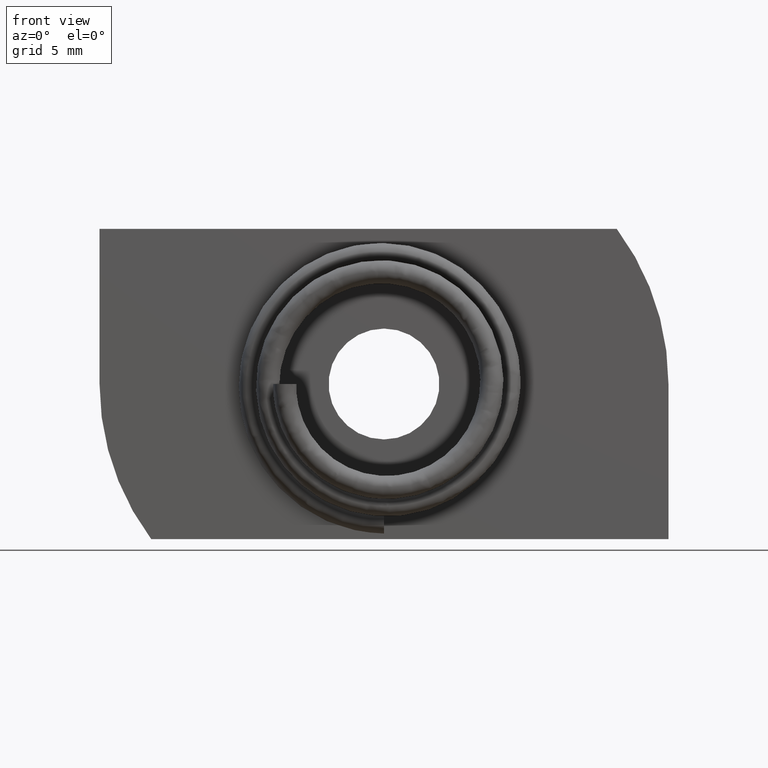
[diagram: clean part render]
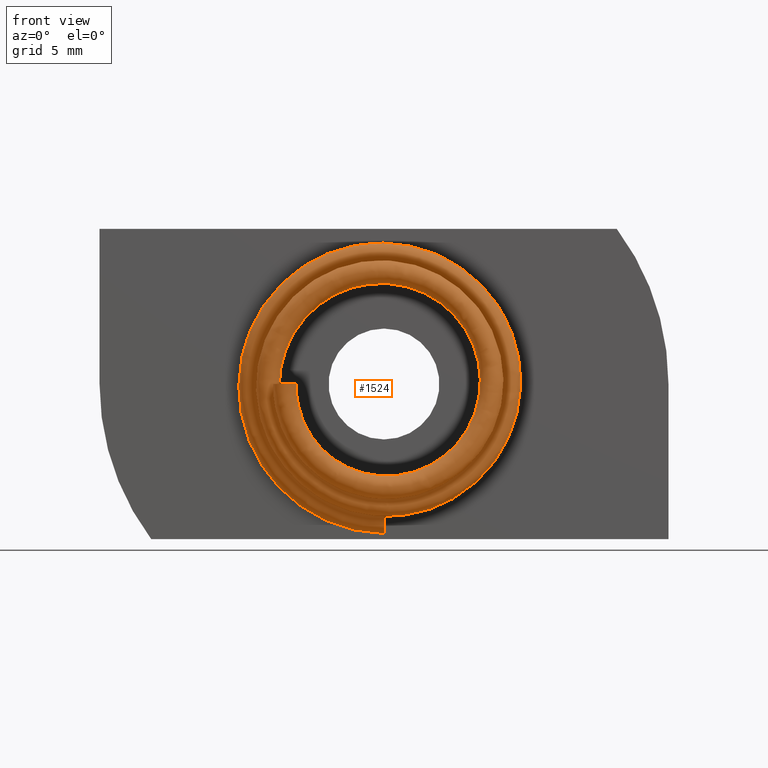
[diagram: same view with one face highlighted and labeled with its STEP entity id]
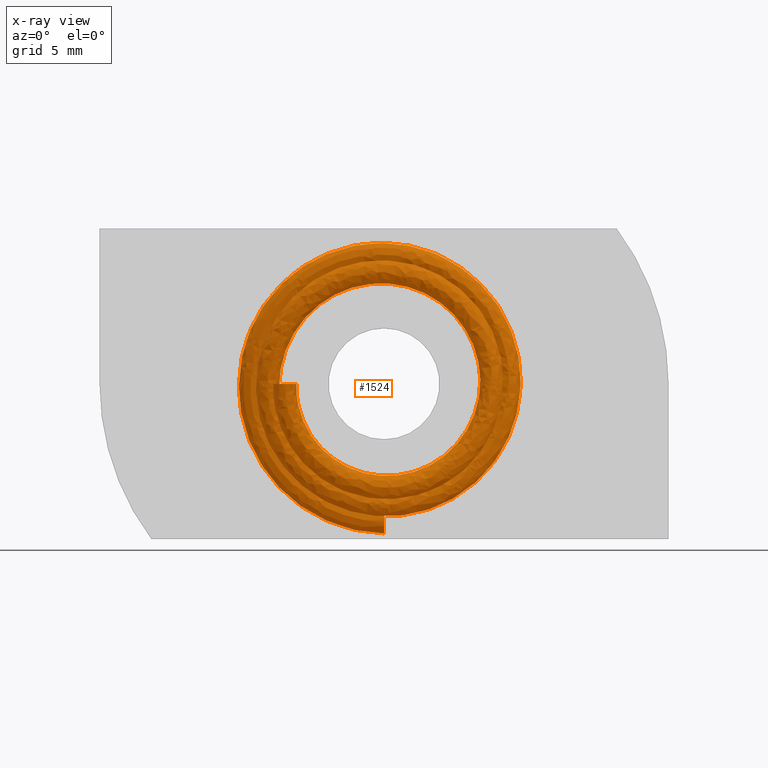
[diagram: x-ray of the same camera — body ghosted, the highlighted face saturated]
A machine part, front view. The second image highlights one B-rep face of the part: STEP entity #1524.
The next image is the same camera in x-ray: the body ghosted, the highlighted face saturated — about 0% of this face is hidden behind the body in this view.
In plain terms, the highlighted face is a freeform B-spline surface patch.
Its self-contained STEP definition (entity closure, byte-faithful):
#10 = CARTESIAN_POINT ( 'NONE',  ( 0.01646834784008086700, -0.4042968749999954500, -0.1671539694218696900 ) ) ;
#11 = CARTESIAN_POINT ( 'NONE',  ( 0.1433215588485929900, -0.3867187500000069900, -0.09575661632387386100 ) ) ;
#12 = CARTESIAN_POINT ( 'NONE',  ( 0.1753029058703783100, -0.3749999999999799000, 7.395882606358802700E-006 ) ) ;
#15 = CARTESIAN_POINT ( 'NONE',  ( 0.1601028446835974800, -0.3828124999999930100, -0.06642710628330854300 ) ) ;
#16 = CARTESIAN_POINT ( 'NONE',  ( -0.1593634679470872000, -0.4355468750000078300, -0.01559766374010203300 ) ) ;
#21 = CARTESIAN_POINT ( 'NONE',  ( -0.1588764992003539000, -0.4375000000000000000, -8.803807010832098000E-017 ) ) ;
#23 = CARTESIAN_POINT ( 'NONE',  ( 0.1139979356253015100, -0.3574218750000123200, 0.1389207215970985900 ) ) ;
#24 = CARTESIAN_POINT ( 'NONE',  ( 0.1568014630587587500, -0.3652343750000073300, 0.08369497619050901600 ) ) ;
#25 = CARTESIAN_POINT ( 'NONE',  ( 0.1691568621261606800, -0.3691406249999926700, 0.05132138286950450900 ) ) ;
#27 = CARTESIAN_POINT ( 'NONE',  ( 0.1327916659264552800, -0.3886718749999882300, -0.1091105794375156100 ) ) ;
#28 = CARTESIAN_POINT ( 'NONE',  ( 0.1084219016303660800, -0.3925781250000117700, -0.1321029881193051000 ) ) ;
#29 = CARTESIAN_POINT ( 'NONE',  ( -0.1575367271959043100, -0.4335937499999997800, -0.03133885051356281900 ) ) ;
#30 = CARTESIAN_POINT ( 'NONE',  ( -0.0001000963912907973600, -0.4062500000000245900, -0.1674645758238921800 ) ) ;
#31 = CARTESIAN_POINT ( 'NONE',  ( 0.1267925840577829900, -0.3593749999999837400, 0.1266458181944495100 ) ) ;
#39 = CARTESIAN_POINT ( 'NONE',  ( 0.01789244994414402100, -0.3457031249999927800, 0.1817640307181987400 ) ) ;
#41 = CARTESIAN_POINT ( 'NONE',  ( 0.09458541679323179100, -0.3945312499999907300, -0.1417389057731912000 ) ) ;
#43 = CARTESIAN_POINT ( 'NONE',  ( -0.09148971898776077400, -0.4179687499999953900, -0.1367455291089631200 ) ) ;
#46 = CARTESIAN_POINT ( 'NONE',  ( 0.1481954964965952500, -0.3632812500000161500, 0.09903106724721180700 ) ) ;
#47 = CARTESIAN_POINT ( 'NONE',  ( 0.04894229102747853900, -0.4003906250000044400, -0.1616875185621940200 ) ) ;
#49 = CARTESIAN_POINT ( 'NONE',  ( 0.03563719470705784700, -0.3476562500000182600, 0.1786236027489670200 ) ) ;
#51 = CARTESIAN_POINT ( 'NONE',  ( -0.1493299340401652300, -0.4296875000000001700, -0.06174813348205712000 ) ) ;
#52 = CARTESIAN_POINT ( 'NONE',  ( 0.1663517138080140000, -0.3808593749999751900, -0.05045499307669388400 ) ) ;
#53 = CARTESIAN_POINT ( 'NONE',  ( 0.06932399300381511500, -0.3515624999999815700, 0.1673870622192267000 ) ) ;
#54 = CARTESIAN_POINT ( 'NONE',  ( 0.08526198071851104300, -0.3535156249999876800, 0.1592928174712949500 ) ) ;
#55 = CARTESIAN_POINT ( 'NONE',  ( 0.1739524570751551600, -0.3769531250000248700, -0.01723571518284860300 ) ) ;
#56 = CARTESIAN_POINT ( 'NONE',  ( -0.1156513839666766700, -0.4218750000000045500, -0.1156566351352014500 ) ) ;
#57 = CARTESIAN_POINT ( 'NONE',  ( -0.01789244994414415300, -0.3417968750000072200, 0.1827379682156123100 ) ) ;
#58 = CARTESIAN_POINT ( 'NONE',  ( 0.1729052002732377700, -0.3710937500000201500, 0.03428810915181882600 ) ) ;
#59 = CARTESIAN_POINT ( 'NONE',  ( -0.07778969644852282200, -0.4160156249999877900, -0.1455431392826600500 ) ) ;
#60 = CARTESIAN_POINT ( 'NONE',  ( -0.1429504418552627900, -0.4277343749999921200, -0.07641229136471203200 ) ) ;
#61 = CARTESIAN_POINT ( 'NONE',  ( -0.03247708238856444900, -0.4101562499999754600, -0.1632970710755766700 ) ) ;
#62 = CARTESIAN_POINT ( 'NONE',  ( -0.04828162861966942000, -0.4121093750000121600, -0.1588199635233168400 ) ) ;
#63 = DIRECTION ( 'NONE',  ( 1.000000000000000000, 0.0000000000000000000, 5.335640612625515600E-016 ) ) ;
#64 = CARTESIAN_POINT ( 'NONE',  ( -0.1261103172015429200, -0.4238281250000079400, -0.1033683601393971900 ) ) ;
#66 = DIRECTION ( 'NONE',  ( -5.335640612625511700E-016, -1.270390622053775600E-017, 1.000000000000000000 ) ) ;
#68 = CARTESIAN_POINT ( 'NONE',  ( 0.06484364002630364800, -0.3984375000000092100, -0.1565318805518530500 ) ) ;
#72 = CARTESIAN_POINT ( 'NONE',  ( 0.0000000000000000000, -0.1562500000000000000, -0.2290000000000000100 ) ) ;
#73 = CARTESIAN_POINT ( 'NONE',  ( -0.1588764992003539000, -0.4375000000000000000, -8.803807010832098000E-017 ) ) ;
#88 = CARTESIAN_POINT ( 'NONE',  ( -0.2008764992003539100, -0.4375000000000000000, -1.104477606813481500E-016 ) ) ;
#119 = CARTESIAN_POINT ( 'NONE',  ( -0.1621201908483985400, -0.3281250000000288700, 0.1620858067988970600 ) ) ;
#120 = CARTESIAN_POINT ( 'NONE',  ( -0.1450249636748774100, -0.3300781250000239300, 0.1769015075358591200 ) ) ;
#474 = CARTESIAN_POINT ( 'NONE',  ( -0.1073959405224880200, -0.3339843749999760200, 0.2008730723031511800 ) ) ;
#475 = CARTESIAN_POINT ( 'NONE',  ( -0.08686711336033775500, -0.3359374999999696400, 0.2100263464821601500 ) ) ;
#476 = CARTESIAN_POINT ( 'NONE',  ( -0.04417430205637767200, -0.3398437500000303100, 0.2219593072207079200 ) ) ;
#477 = CARTESIAN_POINT ( 'NONE',  ( -0.02201579028165777000, -0.3417968750000072200, 0.2247379682156123200 ) ) ;
#478 = CARTESIAN_POINT ( 'NONE',  ( 0.02201579028165761100, -0.3457031249999927800, 0.2237640307181987300 ) ) ;
#479 = CARTESIAN_POINT ( 'NONE',  ( 0.04388336046505766900, -0.3476562500000182600, 0.2200120393687446400 ) ) ;
#480 = CARTESIAN_POINT ( 'NONE',  ( 0.08546174013519015900, -0.3515624999999815700, 0.2063816138009546000 ) ) ;
#481 = CARTESIAN_POINT ( 'NONE',  ( 0.1051674983139349700, -0.3535156249999876800, 0.1965053463398525600 ) ) ;
#482 = CARTESIAN_POINT ( 'NONE',  ( 0.1407603176035241400, -0.3574218750000123200, 0.1715516401619547900 ) ) ;
#483 = CARTESIAN_POINT ( 'NONE',  ( 0.1566432036810672400, -0.3593749999999837400, 0.1564777213123986500 ) ) ;
#484 = CARTESIAN_POINT ( 'NONE',  ( 0.1832777549557809100, -0.3632812500000161500, 0.1224881999990088700 ) ) ;
#485 = CARTESIAN_POINT ( 'NONE',  ( 0.1940264693914555400, -0.3652343750000073300, 0.1035771500922874100 ) ) ;
#486 = CARTESIAN_POINT ( 'NONE',  ( 0.2095377365244119100, -0.3691406249999926700, 0.06358461728639375200 ) ) ;
#487 = CARTESIAN_POINT ( 'NONE',  ( 0.2142988007651120700, -0.3710937500000201500, 0.04250831437111036300 ) ) ;
#488 = CARTESIAN_POINT ( 'NONE',  ( 0.2175048224189685100, -0.3749999999999799000, 2.063045099792120300E-005 ) ) ;
#489 = CARTESIAN_POINT ( 'NONE',  ( 0.2159498626460127900, -0.3769531250000248700, -0.02138539719996944800 ) ) ;
#490 = CARTESIAN_POINT ( 'NONE',  ( 0.2067402717910277200, -0.3808593749999751900, -0.06269289810892771100 ) ) ;
#491 = CARTESIAN_POINT ( 'NONE',  ( 0.1990872669652612700, -0.3828124999999930100, -0.08258930770785528900 ) ) ;
#492 = CARTESIAN_POINT ( 'NONE',  ( 0.1784185227721910300, -0.3867187500000069900, -0.1191917407927108900 ) ) ;
#493 = CARTESIAN_POINT ( 'NONE',  ( 0.1654057926485474600, -0.3886718749999882300, -0.1358934223351119500 ) ) ;
#494 = CARTESIAN_POINT ( 'NONE',  ( 0.1352047445279439500, -0.3925781250000117700, -0.1647171148413786300 ) ) ;
#495 = CARTESIAN_POINT ( 'NONE',  ( 0.1180205412615353300, -0.3945312499999907300, -0.1768358696970584200 ) ) ;
#496 = CARTESIAN_POINT ( 'NONE',  ( 0.08100584145138398100, -0.3984375000000092100, -0.1955163028332475800 ) ) ;
#497 = CARTESIAN_POINT ( 'NONE',  ( 0.06118019605854481400, -0.4003906250000044400, -0.2020760765454431000 ) ) ;
#498 = CARTESIAN_POINT ( 'NONE',  ( 0.02061802985836934400, -0.4042968749999954500, -0.2091513749924919200 ) ) ;
#499 = CARTESIAN_POINT ( 'NONE',  ( -0.0001133309614404597300, -0.4062500000000245900, -0.2096664923723078300 ) ) ;
#500 = CARTESIAN_POINT ( 'NONE',  ( -0.04069728760609780300, -0.4101562499999754600, -0.2046906715676255500 ) ) ;
#501 = CARTESIAN_POINT ( 'NONE',  ( -0.06054486303874173600, -0.4121093750000121600, -0.1992008379206596800 ) ) ;
#502 = CARTESIAN_POINT ( 'NONE',  ( -0.09767187034811805600, -0.4160156249999877900, -0.1827681456162653100 ) ) ;
#503 = CARTESIAN_POINT ( 'NONE',  ( -0.1149468517418494700, -0.4179687499999953900, -0.1718277875662570000 ) ) ;
#504 = CARTESIAN_POINT ( 'NONE',  ( -0.1454832870823341300, -0.4218750000000045500, -0.1455072547603775400 ) ) ;
#505 = CARTESIAN_POINT ( 'NONE',  ( -0.1587412357683678500, -0.4238281250000079400, -0.1301307421146620500 ) ) ;
#506 = CARTESIAN_POINT ( 'NONE',  ( -0.1801629707218516400, -0.4277343749999921200, -0.09631780896309377600 ) ) ;
#507 = CARTESIAN_POINT ( 'NONE',  ( -0.1883244856231218700, -0.4296875000000001700, -0.07788588060946245700 ) ) ;
#508 = CARTESIAN_POINT ( 'NONE',  ( -0.1989251638144531900, -0.4335937499999997800, -0.03958501627553243800 ) ) ;
#509 = CARTESIAN_POINT ( 'NONE',  ( -0.2013634679470784100, -0.4355468750000078300, -0.01972100407288566000 ) ) ;
#510 = CARTESIAN_POINT ( 'NONE',  ( -0.2008764992003539100, -0.4375000000000000000, -1.109813247426107000E-016 ) ) ;
#613 = CARTESIAN_POINT ( 'NONE',  ( 0.0000000000000000000, -0.1562500000000000000, -0.2500000000000000000 ) ) ;
#626 = CARTESIAN_POINT ( 'NONE',  ( 0.0000000000000000000, -0.1562500000000000000, -0.2710000000000000200 ) ) ;
#627 = DIRECTION ( 'NONE',  ( 1.000000000000000000, 0.0000000000000000000, 0.0000000000000000000 ) ) ;
#628 = DIRECTION ( 'NONE',  ( 0.0000000000000000000, 0.0000000000000000000, -1.000000000000000000 ) ) ;
#631 = CARTESIAN_POINT ( 'NONE',  ( -0.02660536296691237400, -0.1582031249999878700, -0.2705130312352578800 ) ) ;
#632 = CARTESIAN_POINT ( 'NONE',  ( -0.05306193203218853600, -0.1601562499999838500, -0.2660803261832042100 ) ) ;
#633 = CARTESIAN_POINT ( 'NONE',  ( -0.1034242056314976500, -0.1640625000000161800, -0.2497853355170725800 ) ) ;
#634 = CARTESIAN_POINT ( 'NONE',  ( -0.1273237614408581400, -0.1660156250000048000, -0.2379255495065815700 ) ) ;
#635 = CARTESIAN_POINT ( 'NONE',  ( -0.1705487607158156500, -0.1699218749999952300, -0.2078721836928000600 ) ) ;
#636 = CARTESIAN_POINT ( 'NONE',  ( -0.1898690758623521600, -0.1718750000000052500, -0.1896827607444656600 ) ) ;
#637 = CARTESIAN_POINT ( 'NONE',  ( -0.2223268149671870600, -0.1757812499999947800, -0.1485976645260630700 ) ) ;
#638 = CARTESIAN_POINT ( 'NONE',  ( -0.2354605608290149500, -0.1777343750000074100, -0.1257074300930825000 ) ) ;
#639 = CARTESIAN_POINT ( 'NONE',  ( -0.2544845346026311500, -0.1816406249999926400, -0.07723447325288569600 ) ) ;
#640 = CARTESIAN_POINT ( 'NONE',  ( -0.2603728353240704100, -0.1835937500000075200, -0.05165799008487498300 ) ) ;
#641 = CARTESIAN_POINT ( 'NONE',  ( -0.2644785704954708500, -0.1874999999999925300, -3.536142827226400200E-005 ) ) ;
#642 = CARTESIAN_POINT ( 'NONE',  ( -0.2626959754071263000, -0.1894531250000115500, 0.02600428970217095000 ) ) ;
#643 = CARTESIAN_POINT ( 'NONE',  ( -0.2516956222227664200, -0.1933593749999884500, 0.07631456074259544700 ) ) ;
#644 = CARTESIAN_POINT ( 'NONE',  ( -0.2424797140836233400, -0.1953125000000070200, 0.1005789925040637400 ) ) ;
#645 = CARTESIAN_POINT ( 'NONE',  ( -0.2174839509681737700, -0.1992187499999929800, 0.1452767085988618300 ) ) ;
#646 = CARTESIAN_POINT ( 'NONE',  ( -0.2017076457180922700, -0.2011718750000233400, 0.1657046398511989000 ) ) ;
#647 = CARTESIAN_POINT ( 'NONE',  ( -0.1650159620396942100, -0.2050781249999766600, 0.2010189679065875200 ) ) ;
#648 = CARTESIAN_POINT ( 'NONE',  ( -0.1441055090712918500, -0.2070312499999989200, 0.2159012978987465700 ) ) ;
#649 = CARTESIAN_POINT ( 'NONE',  ( -0.09899552624398655400, -0.2109375000000010800, 0.2389087499459044400 ) ) ;
#650 = CARTESIAN_POINT ( 'NONE',  ( -0.07480185869471701900, -0.2128906249999948900, 0.2470314269853637600 ) ) ;
#651 = CARTESIAN_POINT ( 'NONE',  ( -0.02523692235806620400, -0.2167968750000051300, 0.2558974877454234800 ) ) ;
#652 = CARTESIAN_POINT ( 'NONE',  ( 0.0001280619380908057800, -0.2187499999999933900, 0.2566402404551608700 ) ) ;
#653 = CARTESIAN_POINT ( 'NONE',  ( 0.04984696332048670100, -0.2226562500000065500, 0.2507647061202332200 ) ) ;
#654 = CARTESIAN_POINT ( 'NONE',  ( 0.07419471900578530900, -0.2246093749999944500, 0.2441476360046161100 ) ) ;
#655 = CARTESIAN_POINT ( 'NONE',  ( 0.1198021503483617900, -0.2285156250000055000, 0.2242022370480874500 ) ) ;
#656 = CARTESIAN_POINT ( 'NONE',  ( 0.1410563162700959100, -0.2304687500000073800, 0.2108768475825315300 ) ) ;
#657 = CARTESIAN_POINT ( 'NONE',  ( 0.1786883265132090700, -0.2343749999999925900, 0.1787331269367939100 ) ) ;
#658 = CARTESIAN_POINT ( 'NONE',  ( 0.1950617793028370200, -0.2363281250000075500, 0.1599191852324275700 ) ) ;
#659 = CARTESIAN_POINT ( 'NONE',  ( 0.2215831738849569100, -0.2402343749999924200, 0.1184740720845426200 ) ) ;
#660 = CARTESIAN_POINT ( 'NONE',  ( 0.2317282073445611200, -0.2421874999999912800, 0.09584834611047328400 ) ) ;
#661 = CARTESIAN_POINT ( 'NONE',  ( 0.2449934506235916500, -0.2460937500000086900, 0.04876358783795971300 ) ) ;
#662 = CARTESIAN_POINT ( 'NONE',  ( 0.2481124684821743600, -0.2480468750000111300, 0.02431057648873476800 ) ) ;
#663 = CARTESIAN_POINT ( 'NONE',  ( 0.2471385309847311300, -0.2519531249999888400, -0.02431057648873467500 ) ) ;
#664 = CARTESIAN_POINT ( 'NONE',  ( 0.2430461827763703800, -0.2539062499999868400, -0.04847264624799783900 ) ) ;
#665 = CARTESIAN_POINT ( 'NONE',  ( 0.2280834746586219200, -0.2578125000000131600, -0.09444297288397020300 ) ) ;
#666 = CARTESIAN_POINT ( 'NONE',  ( 0.2172154479254882500, -0.2597656249999947800, -0.1162456298779833400 ) ) ;
#667 = CARTESIAN_POINT ( 'NONE',  ( 0.1897119119251098300, -0.2636718750000052700, -0.1556545391590854800 ) ) ;
#668 = CARTESIAN_POINT ( 'NONE',  ( 0.1730802410287569400, -0.2656250000000088300, -0.1732561397708807000 ) ) ;
#669 = CARTESIAN_POINT ( 'NONE',  ( 0.1355429322622141700, -0.2695312499999911700, -0.2028022849623161700 ) ) ;
#670 = CARTESIAN_POINT ( 'NONE',  ( 0.1146422900923261700, -0.2714843749999942800, -0.2147435151073702800 ) ) ;
#671 = CARTESIAN_POINT ( 'NONE',  ( 0.07040954527000023400, -0.2753906250000057200, -0.2320111355663905000 ) ) ;
#672 = CARTESIAN_POINT ( 'NONE',  ( 0.04708315222875729400, -0.2773437499999892900, -0.2373358180438084300 ) ) ;
#673 = CARTESIAN_POINT ( 'NONE',  ( 2.799593887078556200E-005, -0.2812500000000106600, -0.2409916964580068600 ) ) ;
#674 = CARTESIAN_POINT ( 'NONE',  ( -0.02369484345020329100, -0.2832031249999882900, -0.2393229190262614600 ) ) ;
#675 = CARTESIAN_POINT ( 'NONE',  ( -0.06950372942662959300, -0.2871093750000117100, -0.2292179470072094000 ) ) ;
#676 = CARTESIAN_POINT ( 'NONE',  ( -0.09158415010608471400, -0.2890624999999935600, -0.2207834905264273200 ) ) ;
#677 = CARTESIAN_POINT ( 'NONE',  ( -0.1322342246956632300, -0.2929687500000064400, -0.1979512368682012100 ) ) ;
#678 = CARTESIAN_POINT ( 'NONE',  ( -0.1507990310933780800, -0.2949218750000244800, -0.1835567191847132200 ) ) ;
#679 = CARTESIAN_POINT ( 'NONE',  ( -0.1828680413737636700, -0.2988281249999755200, -0.1501103532824286400 ) ) ;
#680 = CARTESIAN_POINT ( 'NONE',  ( -0.1963685837966685200, -0.3007812499999891800, -0.1310630251667653500 ) ) ;
#681 = CARTESIAN_POINT ( 'NONE',  ( -0.2172125263908138700, -0.3046875000000107700, -0.09000068384733558900 ) ) ;
#682 = CARTESIAN_POINT ( 'NONE',  ( -0.2245537517644171400, -0.3066406250000048800, -0.06799102737734032100 ) ) ;
#683 = CARTESIAN_POINT ( 'NONE',  ( -0.2325244313699482400, -0.3105468749999950600, -0.02292747610750940300 ) ) ;
#684 = CARTESIAN_POINT ( 'NONE',  ( -0.2331533664156388900, -0.3125000000000124300, 0.0001206964490540887900 ) ) ;
#685 = CARTESIAN_POINT ( 'NONE',  ( -0.2277276888420291800, -0.3164062499999875100, 0.04527212546400410200 ) ) ;
#686 = CARTESIAN_POINT ( 'NONE',  ( -0.2216742369628042800, -0.3183593750000003300, 0.06736979102137340100 ) ) ;
#687 = CARTESIAN_POINT ( 'NONE',  ( -0.2034851913320140100, -0.3222656249999996100, 0.1087370103491318200 ) ) ;
#688 = CARTESIAN_POINT ( 'NONE',  ( -0.1913523175745849600, -0.3242187499999710800, 0.1280015840048499600 ) ) ;
#689 = CARTESIAN_POINT ( 'NONE',  ( -0.1621201908483985400, -0.3281250000000288700, 0.1620858067988970600 ) ) ;
#690 = CARTESIAN_POINT ( 'NONE',  ( -0.1450249636748774100, -0.3300781250000239300, 0.1769015075358591200 ) ) ;
#691 = CARTESIAN_POINT ( 'NONE',  ( -0.1073959405224880200, -0.3339843749999760200, 0.2008730723031511800 ) ) ;
#692 = CARTESIAN_POINT ( 'NONE',  ( -0.08686711336033775500, -0.3359374999999696400, 0.2100263464821601500 ) ) ;
#693 = CARTESIAN_POINT ( 'NONE',  ( -0.04417430205637767200, -0.3398437500000303100, 0.2219593072207079200 ) ) ;
#694 = CARTESIAN_POINT ( 'NONE',  ( -0.02201579028165777000, -0.3417968750000072200, 0.2247379682156123200 ) ) ;
#695 = CARTESIAN_POINT ( 'NONE',  ( 0.02201579028165761100, -0.3457031249999927800, 0.2237640307181987300 ) ) ;
#696 = CARTESIAN_POINT ( 'NONE',  ( 0.04388336046505766900, -0.3476562500000182600, 0.2200120393687446400 ) ) ;
#697 = CARTESIAN_POINT ( 'NONE',  ( 0.08546174013519015900, -0.3515624999999815700, 0.2063816138009546000 ) ) ;
#698 = CARTESIAN_POINT ( 'NONE',  ( 0.1051674983139349700, -0.3535156249999876800, 0.1965053463398525600 ) ) ;
#699 = CARTESIAN_POINT ( 'NONE',  ( 0.1407603176035241400, -0.3574218750000123200, 0.1715516401619547900 ) ) ;
#700 = CARTESIAN_POINT ( 'NONE',  ( 0.1566432036810672400, -0.3593749999999837400, 0.1564777213123986500 ) ) ;
#701 = CARTESIAN_POINT ( 'NONE',  ( 0.1832777549557809100, -0.3632812500000161500, 0.1224881999990088700 ) ) ;
#702 = CARTESIAN_POINT ( 'NONE',  ( 0.1940264693914555400, -0.3652343750000073300, 0.1035771500922874100 ) ) ;
#703 = CARTESIAN_POINT ( 'NONE',  ( 0.2095377365244119100, -0.3691406249999926700, 0.06358461728639375200 ) ) ;
#704 = CARTESIAN_POINT ( 'NONE',  ( 0.2142988007651120700, -0.3710937500000201500, 0.04250831437111036300 ) ) ;
#705 = CARTESIAN_POINT ( 'NONE',  ( 0.2175048224189685100, -0.3749999999999799000, 2.063045099792120300E-005 ) ) ;
#706 = CARTESIAN_POINT ( 'NONE',  ( 0.2159498626460127900, -0.3769531250000248700, -0.02138539719996944800 ) ) ;
#707 = CARTESIAN_POINT ( 'NONE',  ( 0.2067402717910277200, -0.3808593749999751900, -0.06269289810892771100 ) ) ;
#708 = CARTESIAN_POINT ( 'NONE',  ( 0.1990872669652612700, -0.3828124999999930100, -0.08258930770785528900 ) ) ;
#709 = CARTESIAN_POINT ( 'NONE',  ( 0.1784185227721910300, -0.3867187500000069900, -0.1191917407927108900 ) ) ;
#710 = CARTESIAN_POINT ( 'NONE',  ( 0.1654057926485474600, -0.3886718749999882300, -0.1358934223351119500 ) ) ;
#711 = CARTESIAN_POINT ( 'NONE',  ( 0.1352047445279439500, -0.3925781250000117700, -0.1647171148413786300 ) ) ;
#712 = CARTESIAN_POINT ( 'NONE',  ( 0.1180205412615353300, -0.3945312499999907300, -0.1768358696970584200 ) ) ;
#713 = CARTESIAN_POINT ( 'NONE',  ( 0.08100584145138398100, -0.3984375000000092100, -0.1955163028332475800 ) ) ;
#714 = CARTESIAN_POINT ( 'NONE',  ( 0.06118019605854481400, -0.4003906250000044400, -0.2020760765454431000 ) ) ;
#715 = CARTESIAN_POINT ( 'NONE',  ( 0.02061802985836934400, -0.4042968749999954500, -0.2091513749924919200 ) ) ;
#716 = CARTESIAN_POINT ( 'NONE',  ( -0.0001133309614404597300, -0.4062500000000245900, -0.2096664923723078300 ) ) ;
#717 = CARTESIAN_POINT ( 'NONE',  ( -0.04069728760609780300, -0.4101562499999754600, -0.2046906715676255500 ) ) ;
#718 = CARTESIAN_POINT ( 'NONE',  ( -0.06054486303874173600, -0.4121093750000121600, -0.1992008379206596800 ) ) ;
#719 = CARTESIAN_POINT ( 'NONE',  ( -0.09767187034811805600, -0.4160156249999877900, -0.1827681456162653100 ) ) ;
#720 = CARTESIAN_POINT ( 'NONE',  ( -0.1149468517418494700, -0.4179687499999953900, -0.1718277875662570000 ) ) ;
#721 = CARTESIAN_POINT ( 'NONE',  ( -0.1454832870823341300, -0.4218750000000045500, -0.1455072547603775400 ) ) ;
#722 = CARTESIAN_POINT ( 'NONE',  ( -0.1587412357683678500, -0.4238281250000079400, -0.1301307421146620500 ) ) ;
#723 = CARTESIAN_POINT ( 'NONE',  ( -0.1801629707218516400, -0.4277343749999921200, -0.09631780896309377600 ) ) ;
#724 = CARTESIAN_POINT ( 'NONE',  ( -0.1883244856231218700, -0.4296875000000001700, -0.07788588060946245700 ) ) ;
#725 = CARTESIAN_POINT ( 'NONE',  ( -0.1989251638144531900, -0.4335937499999997800, -0.03958501627553243800 ) ) ;
#726 = CARTESIAN_POINT ( 'NONE',  ( -0.2013634679470784100, -0.4355468750000078300, -0.01972100407288566000 ) ) ;
#727 = CARTESIAN_POINT ( 'NONE',  ( -0.2008764992003539100, -0.4375000000000000000, -1.104477606813481500E-016 ) ) ;
#777 = EDGE_LOOP ( 'NONE', ( #893, #908, #1641, #895 ) ) ;
#865 = FACE_OUTER_BOUND ( 'NONE', #777, .T. ) ;
#893 = ORIENTED_EDGE ( 'NONE', *, *, #1588, .F. ) ;
#895 = ORIENTED_EDGE ( 'NONE', *, *, #1589, .F. ) ;
#908 = ORIENTED_EDGE ( 'NONE', *, *, #1359, .T. ) ;
#950 = AXIS2_PLACEMENT_3D ( 'NONE', #1446, #66, #63 ) ;
#956 = AXIS2_PLACEMENT_3D ( 'NONE', #613, #627, #628 ) ;
#1001 = CARTESIAN_POINT ( 'NONE',  ( 0.0000000000000000000, -0.1562500000000000000, -0.2290000000000000100 ) ) ;
#1003 = CARTESIAN_POINT ( 'NONE',  ( -0.04481576628023894300, -0.1601562499999838500, -0.2246918895615955300 ) ) ;
#1004 = CARTESIAN_POINT ( 'NONE',  ( -0.02248202258089622100, -0.1582031249999878700, -0.2285130312352695900 ) ) ;
#1009 = CARTESIAN_POINT ( 'NONE',  ( -0.08728645849407244700, -0.1640625000000161800, -0.2107907839371757600 ) ) ;
#1010 = CARTESIAN_POINT ( 'NONE',  ( -0.1074182438507906200, -0.1660156250000048000, -0.2007130206344521800 ) ) ;
#1011 = CARTESIAN_POINT ( 'NONE',  ( -0.1437863787322366000, -0.1699218749999952300, -0.1752412651315156400 ) ) ;
#1012 = CARTESIAN_POINT ( 'NONE',  ( -0.1600184562432174500, -0.1718750000000052500, -0.1598508576214529000 ) ) ;
#1013 = CARTESIAN_POINT ( 'NONE',  ( -0.1872445565038519100, -0.1757812499999947800, -0.1251405317793296300 ) ) ;
#1014 = CARTESIAN_POINT ( 'NONE',  ( -0.1982355544988703400, -0.1777343750000074100, -0.1058252561851494300 ) ) ;
#1015 = CARTESIAN_POINT ( 'NONE',  ( -0.2141036602018276900, -0.1816406249999926400, -0.06497123884215121000 ) ) ;
#1016 = CARTESIAN_POINT ( 'NONE',  ( -0.2189792348328568900, -0.1835937500000075200, -0.04343778485883338000 ) ) ;
#1017 = CARTESIAN_POINT ( 'NONE',  ( -0.2222766539462198400, -0.1874999999999925300, -2.212686663075864600E-005 ) ) ;
#1018 = CARTESIAN_POINT ( 'NONE',  ( -0.2206985698349251400, -0.1894531250000115500, 0.02185460769182795800 ) ) ;
#1019 = CARTESIAN_POINT ( 'NONE',  ( -0.2113070642410962200, -0.1933593749999884500, 0.06407665570358367400 ) ) ;
#1020 = CARTESIAN_POINT ( 'NONE',  ( -0.2034952917986522800, -0.1953125000000070200, 0.08441679108570740400 ) ) ;
#1021 = CARTESIAN_POINT ( 'NONE',  ( -0.1823869870478830600, -0.1992187499999929800, 0.1218415841238343500 ) ) ;
#1022 = CARTESIAN_POINT ( 'NONE',  ( -0.1690935189909429600, -0.2011718750000233400, 0.1389217969586726000 ) ) ;
#1023 = CARTESIAN_POINT ( 'NONE',  ( -0.1382331191471735400, -0.2050781249999766600, 0.1684048411794438200 ) ) ;
#1024 = CARTESIAN_POINT ( 'NONE',  ( -0.1206703845965610000, -0.2070312499999989200, 0.1808043339783045300 ) ) ;
#1025 = CARTESIAN_POINT ( 'NONE',  ( -0.08283332482533362100, -0.2109375000000010800, 0.1999243276610847000 ) ) ;
#1026 = CARTESIAN_POINT ( 'NONE',  ( -0.06256395365637045000, -0.2128906249999948900, 0.2066428690035588300 ) ) ;
#1027 = CARTESIAN_POINT ( 'NONE',  ( -0.02108724034705796900, -0.2167968750000051300, 0.2139000821733570400 ) ) ;
#1028 = CARTESIAN_POINT ( 'NONE',  ( 0.0001148273754530637400, -0.2187499999999933900, 0.2144383239060105300 ) ) ;
#1029 = CARTESIAN_POINT ( 'NONE',  ( 0.04162675809544135600, -0.2226562500000065500, 0.2093711056289190300 ) ) ;
#1030 = CARTESIAN_POINT ( 'NONE',  ( 0.06193148459381209900, -0.2246093749999944500, 0.2037667616043268600 ) ) ;
#1031 = CARTESIAN_POINT ( 'NONE',  ( 0.09991997644166747400, -0.2285156250000055000, 0.1869772307174286400 ) ) ;
#1032 = CARTESIAN_POINT ( 'NONE',  ( 0.1175991835220586800, -0.2304687500000073800, 0.1757945891202508700 ) ) ;
#1033 = CARTESIAN_POINT ( 'NONE',  ( 0.1488564233915001500, -0.2343749999999925900, 0.1488825073166046300 ) ) ;
#1034 = CARTESIAN_POINT ( 'NONE',  ( 0.1624308607404503500, -0.2363281250000075500, 0.1331568032505206500 ) ) ;
#1035 = CARTESIAN_POINT ( 'NONE',  ( 0.1843706450139298300, -0.2402343749999924200, 0.09856855449280295400 ) ) ;
#1036 = CARTESIAN_POINT ( 'NONE',  ( 0.1927336557639801900, -0.2421874999999912800, 0.07971059897530204100 ) ) ;
#1037 = CARTESIAN_POINT ( 'NONE',  ( 0.2036050140026670900, -0.2460937500000086900, 0.04051742208375611100 ) ) ;
#1038 = CARTESIAN_POINT ( 'NONE',  ( 0.2061124684821743800, -0.2480468750000111300, 0.02018723614767160800 ) ) ;
#1039 = CARTESIAN_POINT ( 'NONE',  ( 0.2051385309847311400, -0.2519531249999888400, -0.02018723614767153200 ) ) ;
#1040 = CARTESIAN_POINT ( 'NONE',  ( 0.2016577461555547900, -0.2539062499999868400, -0.04022648049342789100 ) ) ;
#1041 = CARTESIAN_POINT ( 'NONE',  ( 0.1890889230779319900, -0.2578125000000131600, -0.07830522574916533300 ) ) ;
#1042 = CARTESIAN_POINT ( 'NONE',  ( 0.1800029190548954100, -0.2597656249999947800, -0.09634011228560218600 ) ) ;
#1043 = CARTESIAN_POINT ( 'NONE',  ( 0.1570809933622889200, -0.2636718750000052700, -0.1288921571778200700 ) ) ;
#1044 = CARTESIAN_POINT ( 'NONE',  ( 0.1432483379079333700, -0.2656250000000088300, -0.1434055201499633000 ) ) ;
#1045 = CARTESIAN_POINT ( 'NONE',  ( 0.1120857995132915200, -0.2695312499999911700, -0.1677200265007636700 ) ) ;
#1046 = CARTESIAN_POINT ( 'NONE',  ( 0.09476011618704355300, -0.2714843749999942800, -0.1775185087761192700 ) ) ;
#1047 = CARTESIAN_POINT ( 'NONE',  ( 0.05814631085661529200, -0.2753906250000057200, -0.1916302611666934900 ) ) ;
#1048 = CARTESIAN_POINT ( 'NONE',  ( 0.03886294700561641900, -0.2773437499999892900, -0.1959422175523138600 ) ) ;
#1049 = CARTESIAN_POINT ( 'NONE',  ( 1.476137432858266400E-005, -0.2812500000000106600, -0.1987897799090369000 ) ) ;
#1050 = CARTESIAN_POINT ( 'NONE',  ( -0.01954516143693690500, -0.2832031249999882900, -0.1973255134546383900 ) ) ;
#1051 = CARTESIAN_POINT ( 'NONE',  ( -0.05726582439054119000, -0.2871093750000117100, -0.1888293890249610800 ) ) ;
#1052 = CARTESIAN_POINT ( 'NONE',  ( -0.07542194868506030300, -0.2890624999999935600, -0.1817990682428693700 ) ) ;
#1053 = CARTESIAN_POINT ( 'NONE',  ( -0.1087991002233038400, -0.2929687500000064400, -0.1628542729464973500 ) ) ;
#1054 = CARTESIAN_POINT ( 'NONE',  ( -0.1240161881986815600, -0.2949218750000244800, -0.1509425924597397900 ) ) ;
#1055 = CARTESIAN_POINT ( 'NONE',  ( -0.1502539146487902000, -0.2988281249999755200, -0.1233275103877321000 ) ) ;
#1056 = CARTESIAN_POINT ( 'NONE',  ( -0.1612716198747494400, -0.3007812499999891800, -0.1076279006947850200 ) ) ;
#1057 = CARTESIAN_POINT ( 'NONE',  ( -0.1782281041074711700, -0.3046875000000107700, -0.07383848242593207800 ) ) ;
#1058 = CARTESIAN_POINT ( 'NONE',  ( -0.1841651937819957000, -0.3066406250000048800, -0.05575312234211062000 ) ) ;
#1059 = CARTESIAN_POINT ( 'NONE',  ( -0.1905270257984983700, -0.3105468749999950600, -0.01877779409338429700 ) ) ;
#1060 = CARTESIAN_POINT ( 'NONE',  ( -0.1909514498668002700, -0.3125000000000124300, 0.0001074618832006330100 ) ) ;
#1061 = CARTESIAN_POINT ( 'NONE',  ( -0.1863340883504032700, -0.3164062499999875100, 0.03705192024217452600 ) ) ;
#1062 = CARTESIAN_POINT ( 'NONE',  ( -0.1812933625637773400, -0.3183593750000003300, 0.05510655660635940100 ) ) ;
#1063 = CARTESIAN_POINT ( 'NONE',  ( -0.1662601850000928500, -0.3222656249999996100, 0.08885483644547827200 ) ) ;
#1064 = CARTESIAN_POINT ( 'NONE',  ( -0.1562700591144178300, -0.3242187499999710800, 0.1045444512542364100 ) ) ;
#1065 = CARTESIAN_POINT ( 'NONE',  ( -0.1322695712260957000, -0.3281250000000288700, 0.1322539036797644500 ) ) ;
#1066 = CARTESIAN_POINT ( 'NONE',  ( -0.1182625816957919400, -0.3300781250000239300, 0.1442705889715722400 ) ) ;
#1067 = CARTESIAN_POINT ( 'NONE',  ( -0.08749042292792691400, -0.3339843749999760200, 0.1636605434340243100 ) ) ;
#1068 = CARTESIAN_POINT ( 'NONE',  ( -0.07072936622849754200, -0.3359374999999696400, 0.1710317949005792400 ) ) ;
#1069 = CARTESIAN_POINT ( 'NONE',  ( -0.03592813629884295000, -0.3398437500000303100, 0.1805708706007833100 ) ) ;
#1070 = CARTESIAN_POINT ( 'NONE',  ( -0.01789244994414415300, -0.3417968750000072200, 0.1827379682156123100 ) ) ;
#1071 = CARTESIAN_POINT ( 'NONE',  ( 0.01789244994414402100, -0.3457031249999927800, 0.1817640307181987400 ) ) ;
#1072 = CARTESIAN_POINT ( 'NONE',  ( 0.03563719470705784700, -0.3476562500000182600, 0.1786236027489670200 ) ) ;
#1073 = CARTESIAN_POINT ( 'NONE',  ( 0.06932399300381511500, -0.3515624999999815700, 0.1673870622192267000 ) ) ;
#1074 = CARTESIAN_POINT ( 'NONE',  ( 0.08526198071851104300, -0.3535156249999876800, 0.1592928174712949500 ) ) ;
#1075 = CARTESIAN_POINT ( 'NONE',  ( 0.1139979356253015100, -0.3574218750000123200, 0.1389207215970985900 ) ) ;
#1076 = CARTESIAN_POINT ( 'NONE',  ( 0.1267925840577829900, -0.3593749999999837400, 0.1266458181944495100 ) ) ;
#1077 = CARTESIAN_POINT ( 'NONE',  ( 0.1481954964965952500, -0.3632812500000161500, 0.09903106724721180700 ) ) ;
#1078 = CARTESIAN_POINT ( 'NONE',  ( 0.1568014630587587500, -0.3652343750000073300, 0.08369497619050901600 ) ) ;
#1079 = CARTESIAN_POINT ( 'NONE',  ( 0.1691568621261606800, -0.3691406249999926700, 0.05132138286950450900 ) ) ;
#1080 = CARTESIAN_POINT ( 'NONE',  ( 0.1729052002732377700, -0.3710937500000201500, 0.03428810915181882600 ) ) ;
#1081 = CARTESIAN_POINT ( 'NONE',  ( 0.1753029058703783100, -0.3749999999999799000, 7.395882606358802700E-006 ) ) ;
#1082 = CARTESIAN_POINT ( 'NONE',  ( 0.1739524570751551600, -0.3769531250000248700, -0.01723571518284860300 ) ) ;
#1083 = CARTESIAN_POINT ( 'NONE',  ( 0.1663517138080140000, -0.3808593749999751900, -0.05045499307669388400 ) ) ;
#1084 = CARTESIAN_POINT ( 'NONE',  ( 0.1601028446835974800, -0.3828124999999930100, -0.06642710628330854300 ) ) ;
#1085 = CARTESIAN_POINT ( 'NONE',  ( 0.1433215588485929900, -0.3867187500000069900, -0.09575661632387386100 ) ) ;
#1086 = CARTESIAN_POINT ( 'NONE',  ( 0.1327916659264552800, -0.3886718749999882300, -0.1091105794375156100 ) ) ;
#1087 = CARTESIAN_POINT ( 'NONE',  ( 0.1084219016303660800, -0.3925781250000117700, -0.1321029881193051000 ) ) ;
#1088 = CARTESIAN_POINT ( 'NONE',  ( 0.09458541679323179100, -0.3945312499999907300, -0.1417389057731912000 ) ) ;
#1089 = CARTESIAN_POINT ( 'NONE',  ( 0.06484364002630364800, -0.3984375000000092100, -0.1565318805518530500 ) ) ;
#1090 = CARTESIAN_POINT ( 'NONE',  ( 0.04894229102747853900, -0.4003906250000044400, -0.1616875185621940200 ) ) ;
#1091 = CARTESIAN_POINT ( 'NONE',  ( 0.01646834784008086700, -0.4042968749999954500, -0.1671539694218696900 ) ) ;
#1092 = CARTESIAN_POINT ( 'NONE',  ( -0.0001000963912907973600, -0.4062500000000245900, -0.1674645758238921800 ) ) ;
#1093 = CARTESIAN_POINT ( 'NONE',  ( -0.03247708238856444900, -0.4101562499999754600, -0.1632970710755766700 ) ) ;
#1094 = CARTESIAN_POINT ( 'NONE',  ( -0.04828162861966942000, -0.4121093750000121600, -0.1588199635233168400 ) ) ;
#1095 = CARTESIAN_POINT ( 'NONE',  ( -0.07778969644852282200, -0.4160156249999877900, -0.1455431392826600500 ) ) ;
#1096 = CARTESIAN_POINT ( 'NONE',  ( -0.09148971898776077400, -0.4179687499999953900, -0.1367455291089631200 ) ) ;
#1097 = CARTESIAN_POINT ( 'NONE',  ( -0.1156513839666766700, -0.4218750000000045500, -0.1156566351352014500 ) ) ;
#1098 = CARTESIAN_POINT ( 'NONE',  ( -0.1261103172015429200, -0.4238281250000079400, -0.1033683601393971900 ) ) ;
#1099 = CARTESIAN_POINT ( 'NONE',  ( -0.1429504418552627900, -0.4277343749999921200, -0.07641229136471203200 ) ) ;
#1100 = CARTESIAN_POINT ( 'NONE',  ( -0.1493299340401652300, -0.4296875000000001700, -0.06174813348205712000 ) ) ;
#1101 = CARTESIAN_POINT ( 'NONE',  ( -0.1575367271959043100, -0.4335937499999997800, -0.03133885051356281900 ) ) ;
#1102 = CARTESIAN_POINT ( 'NONE',  ( -0.1593634679470872000, -0.4355468750000078300, -0.01559766374010203300 ) ) ;
#1103 = CARTESIAN_POINT ( 'NONE',  ( -0.1588764992003539000, -0.4375000000000000000, -8.750450604705842700E-017 ) ) ;
#1104 = CARTESIAN_POINT ( 'NONE',  ( 0.0000000000000000000, -0.1982499999999999500, -0.2289999999999999800 ) ) ;
#1105 = CARTESIAN_POINT ( 'NONE',  ( -0.02248202258089622100, -0.2002031249999878200, -0.2285130312352696100 ) ) ;
#1106 = CARTESIAN_POINT ( 'NONE',  ( -0.04481576628023894300, -0.2021562499999838000, -0.2246918895615955500 ) ) ;
#1107 = CARTESIAN_POINT ( 'NONE',  ( -0.08728645849407244700, -0.2060625000000161600, -0.2107907839371757600 ) ) ;
#1108 = CARTESIAN_POINT ( 'NONE',  ( -0.1074182438507906300, -0.2080156250000047800, -0.2007130206344521500 ) ) ;
#1109 = CARTESIAN_POINT ( 'NONE',  ( -0.1437863787322366000, -0.2119218749999951800, -0.1752412651315156100 ) ) ;
#1110 = CARTESIAN_POINT ( 'NONE',  ( -0.1600184562432174500, -0.2138750000000052000, -0.1598508576214529000 ) ) ;
#1111 = CARTESIAN_POINT ( 'NONE',  ( -0.1872445565038519100, -0.2177812499999947400, -0.1251405317793296600 ) ) ;
#1112 = CARTESIAN_POINT ( 'NONE',  ( -0.1982355544988703400, -0.2197343750000073600, -0.1058252561851494400 ) ) ;
#1113 = CARTESIAN_POINT ( 'NONE',  ( -0.2141036602018277200, -0.2236406249999926000, -0.06497123884215119700 ) ) ;
#1114 = CARTESIAN_POINT ( 'NONE',  ( -0.2189792348328568900, -0.2255937500000074800, -0.04343778485883338000 ) ) ;
#1115 = CARTESIAN_POINT ( 'NONE',  ( -0.2222766539462198400, -0.2294999999999924900, -2.212686663075863900E-005 ) ) ;
#1116 = CARTESIAN_POINT ( 'NONE',  ( -0.2206985698349251700, -0.2314531250000115300, 0.02185460769182654900 ) ) ;
#1117 = CARTESIAN_POINT ( 'NONE',  ( -0.2113070642410961900, -0.2353593749999884100, 0.06407665570358508900 ) ) ;
#1118 = CARTESIAN_POINT ( 'NONE',  ( -0.2034952917986522500, -0.2373125000000069800, 0.08441679108570740400 ) ) ;
#1119 = CARTESIAN_POINT ( 'NONE',  ( -0.1823869870478830600, -0.2412187499999929900, 0.1218415841238343500 ) ) ;
#1120 = CARTESIAN_POINT ( 'NONE',  ( -0.1690935189909429600, -0.2431718750000233000, 0.1389217969586726000 ) ) ;
#1121 = CARTESIAN_POINT ( 'NONE',  ( -0.1382331191471735400, -0.2470781249999766700, 0.1684048411794438200 ) ) ;
#1122 = CARTESIAN_POINT ( 'NONE',  ( -0.1206703845965610300, -0.2490312499999988700, 0.1808043339783045300 ) ) ;
#1123 = CARTESIAN_POINT ( 'NONE',  ( -0.08283332482533360700, -0.2529375000000010400, 0.1999243276610847000 ) ) ;
#1124 = CARTESIAN_POINT ( 'NONE',  ( -0.06256395365637045000, -0.2548906249999948700, 0.2066428690035588300 ) ) ;
#1125 = CARTESIAN_POINT ( 'NONE',  ( -0.02108724034705797300, -0.2587968750000050300, 0.2139000821733570700 ) ) ;
#1126 = CARTESIAN_POINT ( 'NONE',  ( 0.0001148273754530637400, -0.2607499999999933800, 0.2144383239060105600 ) ) ;
#1127 = CARTESIAN_POINT ( 'NONE',  ( 0.04162675809544135600, -0.2646562500000064800, 0.2093711056289190300 ) ) ;
#1128 = CARTESIAN_POINT ( 'NONE',  ( 0.06193148459381210600, -0.2666093749999943800, 0.2037667616043268300 ) ) ;
#1129 = CARTESIAN_POINT ( 'NONE',  ( 0.09991997644166747400, -0.2705156250000054800, 0.1869772307174285800 ) ) ;
#1130 = CARTESIAN_POINT ( 'NONE',  ( 0.1175991835220586700, -0.2724687500000073600, 0.1757945891202508900 ) ) ;
#1131 = CARTESIAN_POINT ( 'NONE',  ( 0.1488564233915001300, -0.2763749999999926000, 0.1488825073166046300 ) ) ;
#1132 = CARTESIAN_POINT ( 'NONE',  ( 0.1624308607404503500, -0.2783281250000075300, 0.1331568032505206500 ) ) ;
#1133 = CARTESIAN_POINT ( 'NONE',  ( 0.1843706450139298300, -0.2822343749999923800, 0.09856855449280296800 ) ) ;
#1134 = CARTESIAN_POINT ( 'NONE',  ( 0.1927336557639801900, -0.2841874999999858800, 0.07971059897530204100 ) ) ;
#1135 = CARTESIAN_POINT ( 'NONE',  ( 0.2036050140026670900, -0.2880937500000140300, 0.04051742208375611100 ) ) ;
#1136 = CARTESIAN_POINT ( 'NONE',  ( 0.2061124684821744000, -0.2900468750000110800, 0.02018723614767160800 ) ) ;
#1137 = CARTESIAN_POINT ( 'NONE',  ( 0.2051385309847311700, -0.2939531249999888200, -0.02018723614767153200 ) ) ;
#1138 = CARTESIAN_POINT ( 'NONE',  ( 0.2016577461555547900, -0.2959062499999867700, -0.04022648049342789100 ) ) ;
#1139 = CARTESIAN_POINT ( 'NONE',  ( 0.1890889230779319600, -0.2998125000000131400, -0.07830522574916533300 ) ) ;
#1140 = CARTESIAN_POINT ( 'NONE',  ( 0.1800029190548954100, -0.3017656249999947100, -0.09634011228560218600 ) ) ;
#1141 = CARTESIAN_POINT ( 'NONE',  ( 0.1570809933622889200, -0.3056718750000052000, -0.1288921571778200700 ) ) ;
#1142 = CARTESIAN_POINT ( 'NONE',  ( 0.1432483379079307300, -0.3076250000000140300, -0.1434055201499633000 ) ) ;
#1143 = CARTESIAN_POINT ( 'NONE',  ( 0.1120857995132941400, -0.3115312499999858300, -0.1677200265007637000 ) ) ;
#1144 = CARTESIAN_POINT ( 'NONE',  ( 0.09476011618704487100, -0.3134843749999889900, -0.1775185087761193000 ) ) ;
#1145 = CARTESIAN_POINT ( 'NONE',  ( 0.05814631085661398800, -0.3173906250000109200, -0.1916302611666934900 ) ) ;
#1146 = CARTESIAN_POINT ( 'NONE',  ( 0.03886294700561641900, -0.3193437499999997000, -0.1959422175523138400 ) ) ;
#1147 = CARTESIAN_POINT ( 'NONE',  ( 1.476137432857839500E-005, -0.3232500000000001500, -0.1987897799090369300 ) ) ;
#1148 = CARTESIAN_POINT ( 'NONE',  ( -0.01954516143693626300, -0.3252031249999778900, -0.1973255134546383600 ) ) ;
#1149 = CARTESIAN_POINT ( 'NONE',  ( -0.05726582439054183500, -0.3291093750000219600, -0.1888293890249611000 ) ) ;
#1150 = CARTESIAN_POINT ( 'NONE',  ( -0.07542194868506028900, -0.3310624999999935400, -0.1817990682428694000 ) ) ;
#1151 = CARTESIAN_POINT ( 'NONE',  ( -0.1087991002233038300, -0.3349687500000064200, -0.1628542729464973200 ) ) ;
#1152 = CARTESIAN_POINT ( 'NONE',  ( -0.1240161881986815700, -0.3369218750000141900, -0.1509425924597397600 ) ) ;
#1153 = CARTESIAN_POINT ( 'NONE',  ( -0.1502539146487902000, -0.3408281249999856600, -0.1233275103877320800 ) ) ;
#1154 = CARTESIAN_POINT ( 'NONE',  ( -0.1612716198747494200, -0.3427812499999789400, -0.1076279006947850300 ) ) ;
#1155 = CARTESIAN_POINT ( 'NONE',  ( -0.1782281041074711400, -0.3466875000000209700, -0.07383848242593207800 ) ) ;
#1156 = CARTESIAN_POINT ( 'NONE',  ( -0.1841651937819956400, -0.3486406249999947600, -0.05575312234210998100 ) ) ;
#1157 = CARTESIAN_POINT ( 'NONE',  ( -0.1905270257984984000, -0.3525468750000051400, -0.01877779409338493200 ) ) ;
#1158 = CARTESIAN_POINT ( 'NONE',  ( -0.1909514498668002700, -0.3545000000000124700, 0.0001074618832006351500 ) ) ;
#1159 = CARTESIAN_POINT ( 'NONE',  ( -0.1863340883504032700, -0.3584062499999874900, 0.03705192024217451900 ) ) ;
#1160 = CARTESIAN_POINT ( 'NONE',  ( -0.1812933625637773400, -0.3603593750000002600, 0.05510655660636065000 ) ) ;
#1161 = CARTESIAN_POINT ( 'NONE',  ( -0.1662601850000928200, -0.3642656249999995900, 0.08885483644547700900 ) ) ;
#1162 = CARTESIAN_POINT ( 'NONE',  ( -0.1562700591144178300, -0.3662187499999660600, 0.1045444512542388800 ) ) ;
#1163 = CARTESIAN_POINT ( 'NONE',  ( -0.1322695712260957000, -0.3701250000000339000, 0.1322539036797619200 ) ) ;
#1164 = CARTESIAN_POINT ( 'NONE',  ( -0.1182625816957944100, -0.3720781250000190200, 0.1442705889715673000 ) ) ;
#1165 = CARTESIAN_POINT ( 'NONE',  ( -0.08749042292792444400, -0.3759843749999809400, 0.1636605434340292200 ) ) ;
#1166 = CARTESIAN_POINT ( 'NONE',  ( -0.07072936622849754200, -0.3779374999999646800, 0.1710317949005792400 ) ) ;
#1167 = CARTESIAN_POINT ( 'NONE',  ( -0.03592813629884295000, -0.3818437500000352300, 0.1805708706007832500 ) ) ;
#1168 = CARTESIAN_POINT ( 'NONE',  ( -0.01789244994414415000, -0.3837968750000071400, 0.1827379682156123100 ) ) ;
#1169 = CARTESIAN_POINT ( 'NONE',  ( 0.01789244994414401800, -0.3877031249999927700, 0.1817640307181987200 ) ) ;
#1170 = CARTESIAN_POINT ( 'NONE',  ( 0.03563719470705784000, -0.3896562500000085300, 0.1786236027489670200 ) ) ;
#1171 = CARTESIAN_POINT ( 'NONE',  ( 0.06932399300381511500, -0.3935624999999911600, 0.1673870622192267000 ) ) ;
#1172 = CARTESIAN_POINT ( 'NONE',  ( 0.08526198071851104300, -0.3955156249999780500, 0.1592928174712949500 ) ) ;
#1173 = CARTESIAN_POINT ( 'NONE',  ( 0.1139979356253015300, -0.3994218750000219600, 0.1389207215970986200 ) ) ;
#1174 = CARTESIAN_POINT ( 'NONE',  ( 0.1267925840577806000, -0.4013749999999836600, 0.1266458181944518900 ) ) ;
#1175 = CARTESIAN_POINT ( 'NONE',  ( 0.1481954964965976300, -0.4052812500000160800, 0.09903106724720942000 ) ) ;
#1176 = CARTESIAN_POINT ( 'NONE',  ( 0.1568014630587587500, -0.4072343750000263500, 0.08369497619050901600 ) ) ;
#1177 = CARTESIAN_POINT ( 'NONE',  ( 0.1691568621261606800, -0.4111406249999736700, 0.05132138286950451600 ) ) ;
#1178 = CARTESIAN_POINT ( 'NONE',  ( 0.1729052002732377700, -0.4130937500000012000, 0.03428810915181853400 ) ) ;
#1179 = CARTESIAN_POINT ( 'NONE',  ( 0.1753029058703783100, -0.4169999999999988200, 7.395882606651196000E-006 ) ) ;
#1180 = CARTESIAN_POINT ( 'NONE',  ( 0.1739524570751551400, -0.4189531250000436100, -0.01723571518284801000 ) ) ;
#1181 = CARTESIAN_POINT ( 'NONE',  ( 0.1663517138080140300, -0.4228593749999564600, -0.05045499307669446700 ) ) ;
#1182 = CARTESIAN_POINT ( 'NONE',  ( 0.1601028446835951700, -0.4248124999999930400, -0.06642710628330854300 ) ) ;
#1183 = CARTESIAN_POINT ( 'NONE',  ( 0.1433215588485953500, -0.4287187500000069800, -0.09575661632387386100 ) ) ;
#1184 = CARTESIAN_POINT ( 'NONE',  ( 0.1327916659264529700, -0.4306718750000068100, -0.1091105794375179400 ) ) ;
#1185 = CARTESIAN_POINT ( 'NONE',  ( 0.1084219016303683800, -0.4345781249999932600, -0.1321029881193027700 ) ) ;
#1186 = CARTESIAN_POINT ( 'NONE',  ( 0.09458541679323180500, -0.4365312499999906600, -0.1417389057731889000 ) ) ;
#1187 = CARTESIAN_POINT ( 'NONE',  ( 0.06484364002630367600, -0.4404375000000091400, -0.1565318805518553500 ) ) ;
#1188 = CARTESIAN_POINT ( 'NONE',  ( 0.04894229102747797000, -0.4423906250000226900, -0.1616875185621939900 ) ) ;
#1189 = CARTESIAN_POINT ( 'NONE',  ( 0.01646834784008144000, -0.4462968749999771100, -0.1671539694218696900 ) ) ;
#1190 = CARTESIAN_POINT ( 'NONE',  ( -0.0001000963912907973600, -0.4482500000000246300, -0.1674645758238921800 ) ) ;
#1191 = CARTESIAN_POINT ( 'NONE',  ( -0.03247708238856444900, -0.4521562499999754500, -0.1632970710755766700 ) ) ;
#1192 = CARTESIAN_POINT ( 'NONE',  ( -0.04828162861966828900, -0.4541093750000120300, -0.1588199635233168400 ) ) ;
#1193 = CARTESIAN_POINT ( 'NONE',  ( -0.07778969644852397300, -0.4580156249999876600, -0.1455431392826600500 ) ) ;
#1194 = CARTESIAN_POINT ( 'NONE',  ( -0.09148971898776077400, -0.4599687500000131900, -0.1367455291089631500 ) ) ;
#1195 = CARTESIAN_POINT ( 'NONE',  ( -0.1156513839666766900, -0.4638749999999866000, -0.1156566351352014700 ) ) ;
#1196 = CARTESIAN_POINT ( 'NONE',  ( -0.1261103172015406700, -0.4658281250000257900, -0.1033683601393949600 ) ) ;
#1197 = CARTESIAN_POINT ( 'NONE',  ( -0.1429504418552650100, -0.4697343749999744500, -0.07641229136471426600 ) ) ;
#1198 = CARTESIAN_POINT ( 'NONE',  ( -0.1493299340401696700, -0.4716875000000001500, -0.06174813348205712700 ) ) ;
#1199 = CARTESIAN_POINT ( 'NONE',  ( -0.1575367271958999200, -0.4755937499999997600, -0.03133885051356281200 ) ) ;
#1200 = CARTESIAN_POINT ( 'NONE',  ( -0.1593634679470871700, -0.4775468750000078100, -0.01559766374010203500 ) ) ;
#1201 = CARTESIAN_POINT ( 'NONE',  ( -0.1588764992003539000, -0.4794999999999998700, -8.803807010832098000E-017 ) ) ;
#1202 = CARTESIAN_POINT ( 'NONE',  ( 0.0000000000000000000, -0.1982499999999999500, -0.2710000000000000200 ) ) ;
#1203 = CARTESIAN_POINT ( 'NONE',  ( -0.02660536296691237400, -0.2002031249999878200, -0.2705130312352579400 ) ) ;
#1204 = CARTESIAN_POINT ( 'NONE',  ( -0.05306193203218856300, -0.2021562499999838000, -0.2660803261832042600 ) ) ;
#1205 = CARTESIAN_POINT ( 'NONE',  ( -0.1034242056314976500, -0.2060625000000161600, -0.2497853355170726300 ) ) ;
#1206 = CARTESIAN_POINT ( 'NONE',  ( -0.1273237614408581400, -0.2080156250000047800, -0.2379255495065815700 ) ) ;
#1207 = CARTESIAN_POINT ( 'NONE',  ( -0.1705487607158157100, -0.2119218749999951800, -0.2078721836928000300 ) ) ;
#1208 = CARTESIAN_POINT ( 'NONE',  ( -0.1898690758623521900, -0.2138750000000052000, -0.1896827607444657200 ) ) ;
#1209 = CARTESIAN_POINT ( 'NONE',  ( -0.2223268149671870900, -0.2177812499999947400, -0.1485976645260631000 ) ) ;
#1210 = CARTESIAN_POINT ( 'NONE',  ( -0.2354605608290149800, -0.2197343750000073600, -0.1257074300930825000 ) ) ;
#1211 = CARTESIAN_POINT ( 'NONE',  ( -0.2544845346026311500, -0.2236406249999926000, -0.07723447325288569600 ) ) ;
#1212 = CARTESIAN_POINT ( 'NONE',  ( -0.2603728353240704100, -0.2255937500000074800, -0.05165799008487498300 ) ) ;
#1213 = CARTESIAN_POINT ( 'NONE',  ( -0.2644785704954709100, -0.2294999999999924900, -3.536142827226400200E-005 ) ) ;
#1214 = CARTESIAN_POINT ( 'NONE',  ( -0.2626959754071263000, -0.2314531250000115300, 0.02600428970216953800 ) ) ;
#1215 = CARTESIAN_POINT ( 'NONE',  ( -0.2516956222227664200, -0.2353593749999884100, 0.07631456074259689000 ) ) ;
#1216 = CARTESIAN_POINT ( 'NONE',  ( -0.2424797140836234300, -0.2373125000000069800, 0.1005789925040637600 ) ) ;
#1217 = CARTESIAN_POINT ( 'NONE',  ( -0.2174839509681738000, -0.2412187499999929900, 0.1452767085988618500 ) ) ;
#1218 = CARTESIAN_POINT ( 'NONE',  ( -0.2017076457180922700, -0.2431718750000233000, 0.1657046398511989000 ) ) ;
#1219 = CARTESIAN_POINT ( 'NONE',  ( -0.1650159620396942100, -0.2470781249999766700, 0.2010189679065875200 ) ) ;
#1220 = CARTESIAN_POINT ( 'NONE',  ( -0.1441055090712918500, -0.2490312499999988700, 0.2159012978987466200 ) ) ;
#1221 = CARTESIAN_POINT ( 'NONE',  ( -0.09899552624398658100, -0.2529375000000010400, 0.2389087499459045200 ) ) ;
#1222 = CARTESIAN_POINT ( 'NONE',  ( -0.07480185869471701900, -0.2548906249999948700, 0.2470314269853637900 ) ) ;
#1223 = CARTESIAN_POINT ( 'NONE',  ( -0.02523692235806621100, -0.2587968750000050300, 0.2558974877454234800 ) ) ;
#1224 = CARTESIAN_POINT ( 'NONE',  ( 0.0001280619380908100600, -0.2607499999999933800, 0.2566402404551608700 ) ) ;
#1225 = CARTESIAN_POINT ( 'NONE',  ( 0.04984696332048670800, -0.2646562500000064800, 0.2507647061202332700 ) ) ;
#1226 = CARTESIAN_POINT ( 'NONE',  ( 0.07419471900578532300, -0.2666093749999943800, 0.2441476360046161700 ) ) ;
#1227 = CARTESIAN_POINT ( 'NONE',  ( 0.1198021503483618100, -0.2705156250000054800, 0.2242022370480874500 ) ) ;
#1228 = CARTESIAN_POINT ( 'NONE',  ( 0.1410563162700904900, -0.2724687500000073600, 0.2108768475825315800 ) ) ;
#1229 = CARTESIAN_POINT ( 'NONE',  ( 0.1786883265132145300, -0.2763749999999926000, 0.1787331269367939700 ) ) ;
#1230 = CARTESIAN_POINT ( 'NONE',  ( 0.1950617793028370200, -0.2783281250000075300, 0.1599191852324275700 ) ) ;
#1231 = CARTESIAN_POINT ( 'NONE',  ( 0.2215831738849569100, -0.2822343749999923800, 0.1184740720845426500 ) ) ;
#1232 = CARTESIAN_POINT ( 'NONE',  ( 0.2317282073445557900, -0.2841874999999858800, 0.09584834611047328400 ) ) ;
#1233 = CARTESIAN_POINT ( 'NONE',  ( 0.2449934506235971500, -0.2880937500000140300, 0.04876358783795972700 ) ) ;
#1234 = CARTESIAN_POINT ( 'NONE',  ( 0.2481124684821744100, -0.2900468750000110800, 0.02431057648873476800 ) ) ;
#1235 = CARTESIAN_POINT ( 'NONE',  ( 0.2471385309847312100, -0.2939531249999888200, -0.02431057648873467500 ) ) ;
#1236 = CARTESIAN_POINT ( 'NONE',  ( 0.2430461827763704100, -0.2959062499999867700, -0.04847264624799786000 ) ) ;
#1237 = CARTESIAN_POINT ( 'NONE',  ( 0.2280834746586219400, -0.2998125000000131400, -0.09444297288397021700 ) ) ;
#1238 = CARTESIAN_POINT ( 'NONE',  ( 0.2172154479254829700, -0.3017656249999947100, -0.1162456298779833700 ) ) ;
#1239 = CARTESIAN_POINT ( 'NONE',  ( 0.1897119119251151900, -0.3056718750000052000, -0.1556545391590855000 ) ) ;
#1240 = CARTESIAN_POINT ( 'NONE',  ( 0.1730802410287569400, -0.3076250000000140300, -0.1732561397708807000 ) ) ;
#1241 = CARTESIAN_POINT ( 'NONE',  ( 0.1355429322622142300, -0.3115312499999858300, -0.2028022849623162000 ) ) ;
#1242 = CARTESIAN_POINT ( 'NONE',  ( 0.1146422900923262100, -0.3134843749999889900, -0.2147435151073703300 ) ) ;
#1243 = CARTESIAN_POINT ( 'NONE',  ( 0.07040954527000026200, -0.3173906250000109200, -0.2320111355663905300 ) ) ;
#1244 = CARTESIAN_POINT ( 'NONE',  ( 0.04708315222875729400, -0.3193437499999997000, -0.2373358180438085400 ) ) ;
#1245 = CARTESIAN_POINT ( 'NONE',  ( 2.799593887078556500E-005, -0.3232500000000001500, -0.2409916964580069700 ) ) ;
#1246 = CARTESIAN_POINT ( 'NONE',  ( -0.02369484345020328800, -0.3252031249999778900, -0.2393229190262614900 ) ) ;
#1247 = CARTESIAN_POINT ( 'NONE',  ( -0.06950372942662959300, -0.3291093750000219600, -0.2292179470072094000 ) ) ;
#1248 = CARTESIAN_POINT ( 'NONE',  ( -0.09158415010608471400, -0.3310624999999935400, -0.2207834905264273700 ) ) ;
#1249 = CARTESIAN_POINT ( 'NONE',  ( -0.1322342246956632300, -0.3349687500000064200, -0.1979512368682012400 ) ) ;
#1250 = CARTESIAN_POINT ( 'NONE',  ( -0.1507990310933781400, -0.3369218750000141900, -0.1835567191847132000 ) ) ;
#1251 = CARTESIAN_POINT ( 'NONE',  ( -0.1828680413737636700, -0.3408281249999856600, -0.1501103532824286700 ) ) ;
#1252 = CARTESIAN_POINT ( 'NONE',  ( -0.1963685837966685200, -0.3427812499999789400, -0.1310630251667653500 ) ) ;
#1253 = CARTESIAN_POINT ( 'NONE',  ( -0.2172125263908138700, -0.3466875000000209700, -0.09000068384733558900 ) ) ;
#1254 = CARTESIAN_POINT ( 'NONE',  ( -0.2245537517644171600, -0.3486406249999947600, -0.06799102737734033500 ) ) ;
#1255 = CARTESIAN_POINT ( 'NONE',  ( -0.2325244313699482700, -0.3525468750000051400, -0.02292747610750941000 ) ) ;
#1256 = CARTESIAN_POINT ( 'NONE',  ( -0.2331533664156439900, -0.3545000000000124700, 0.0001206964490540845500 ) ) ;
#1257 = CARTESIAN_POINT ( 'NONE',  ( -0.2277276888420241600, -0.3584062499999874900, 0.04527212546400410900 ) ) ;
#1258 = CARTESIAN_POINT ( 'NONE',  ( -0.2216742369628042800, -0.3603593750000002600, 0.06736979102137090300 ) ) ;
#1259 = CARTESIAN_POINT ( 'NONE',  ( -0.2034851913320140100, -0.3642656249999995900, 0.1087370103491343100 ) ) ;
#1260 = CARTESIAN_POINT ( 'NONE',  ( -0.1913523175745898700, -0.3662187499999660600, 0.1280015840048524500 ) ) ;
#1261 = CARTESIAN_POINT ( 'NONE',  ( -0.1621201908483936000, -0.3701250000000339000, 0.1620858067988945900 ) ) ;
#1262 = CARTESIAN_POINT ( 'NONE',  ( -0.1450249636748774100, -0.3720781250000190200, 0.1769015075358591200 ) ) ;
#1263 = CARTESIAN_POINT ( 'NONE',  ( -0.1073959405224880500, -0.3759843749999809400, 0.2008730723031512400 ) ) ;
#1264 = CARTESIAN_POINT ( 'NONE',  ( -0.08686711336033653400, -0.3779374999999646800, 0.2100263464821601800 ) ) ;
#1265 = CARTESIAN_POINT ( 'NONE',  ( -0.04417430205637891400, -0.3818437500000352300, 0.2219593072207079700 ) ) ;
#1266 = CARTESIAN_POINT ( 'NONE',  ( -0.02201579028165776700, -0.3837968750000071400, 0.2247379682156123200 ) ) ;
#1267 = CARTESIAN_POINT ( 'NONE',  ( 0.02201579028165761100, -0.3877031249999927700, 0.2237640307181987500 ) ) ;
#1268 = CARTESIAN_POINT ( 'NONE',  ( 0.04388336046505768300, -0.3896562500000085300, 0.2200120393687446700 ) ) ;
#1269 = CARTESIAN_POINT ( 'NONE',  ( 0.08546174013519015900, -0.3935624999999911600, 0.2063816138009546300 ) ) ;
#1270 = CARTESIAN_POINT ( 'NONE',  ( 0.1051674983139349700, -0.3955156249999780500, 0.1965053463398526200 ) ) ;
#1271 = CARTESIAN_POINT ( 'NONE',  ( 0.1407603176035241400, -0.3994218750000219600, 0.1715516401619548200 ) ) ;
#1272 = CARTESIAN_POINT ( 'NONE',  ( 0.1566432036810672900, -0.4013749999999836600, 0.1564777213123962900 ) ) ;
#1273 = CARTESIAN_POINT ( 'NONE',  ( 0.1832777549557809400, -0.4052812500000160800, 0.1224881999990112800 ) ) ;
#1274 = CARTESIAN_POINT ( 'NONE',  ( 0.1940264693914556500, -0.4072343750000263500, 0.1035771500922874100 ) ) ;
#1275 = CARTESIAN_POINT ( 'NONE',  ( 0.2095377365244119100, -0.4111406249999736700, 0.06358461728639373800 ) ) ;
#1276 = CARTESIAN_POINT ( 'NONE',  ( 0.2142988007651168400, -0.4130937500000012000, 0.04250831437111036300 ) ) ;
#1277 = CARTESIAN_POINT ( 'NONE',  ( 0.2175048224189638200, -0.4169999999999988200, 2.063045099791266800E-005 ) ) ;
#1278 = CARTESIAN_POINT ( 'NONE',  ( 0.2159498626460128200, -0.4189531250000436100, -0.02138539719996946200 ) ) ;
#1279 = CARTESIAN_POINT ( 'NONE',  ( 0.2067402717910277700, -0.4228593749999564600, -0.06269289810892772500 ) ) ;
#1280 = CARTESIAN_POINT ( 'NONE',  ( 0.1990872669652612700, -0.4248124999999930400, -0.08258930770785295700 ) ) ;
#1281 = CARTESIAN_POINT ( 'NONE',  ( 0.1784185227721910300, -0.4287187500000069800, -0.1191917407927132500 ) ) ;
#1282 = CARTESIAN_POINT ( 'NONE',  ( 0.1654057926485474900, -0.4306718750000068100, -0.1358934223351096500 ) ) ;
#1283 = CARTESIAN_POINT ( 'NONE',  ( 0.1352047445279439500, -0.4345781249999932600, -0.1647171148413809300 ) ) ;
#1284 = CARTESIAN_POINT ( 'NONE',  ( 0.1180205412615353600, -0.4365312499999906600, -0.1768358696970585000 ) ) ;
#1285 = CARTESIAN_POINT ( 'NONE',  ( 0.08100584145138399500, -0.4404375000000091400, -0.1955163028332476400 ) ) ;
#1286 = CARTESIAN_POINT ( 'NONE',  ( 0.06118019605854368300, -0.4423906250000226900, -0.2020760765454431300 ) ) ;
#1287 = CARTESIAN_POINT ( 'NONE',  ( 0.02061802985837049200, -0.4462968749999771100, -0.2091513749924919500 ) ) ;
#1288 = CARTESIAN_POINT ( 'NONE',  ( -0.0001133309614410359800, -0.4482500000000246300, -0.2096664923723124100 ) ) ;
#1289 = CARTESIAN_POINT ( 'NONE',  ( -0.04069728760609724700, -0.4521562499999754500, -0.2046906715676210200 ) ) ;
#1290 = CARTESIAN_POINT ( 'NONE',  ( -0.06054486303873949500, -0.4541093750000120300, -0.1992008379206597100 ) ) ;
#1291 = CARTESIAN_POINT ( 'NONE',  ( -0.09767187034812031800, -0.4580156249999876600, -0.1827681456162653100 ) ) ;
#1292 = CARTESIAN_POINT ( 'NONE',  ( -0.1149468517418494700, -0.4599687500000131900, -0.1718277875662570200 ) ) ;
#1293 = CARTESIAN_POINT ( 'NONE',  ( -0.1454832870823341600, -0.4638749999999866000, -0.1455072547603775400 ) ) ;
#1294 = CARTESIAN_POINT ( 'NONE',  ( -0.1587412357683678800, -0.4658281250000257900, -0.1301307421146620800 ) ) ;
#1295 = CARTESIAN_POINT ( 'NONE',  ( -0.1801629707218516700, -0.4697343749999744500, -0.09631780896309379000 ) ) ;
#1296 = CARTESIAN_POINT ( 'NONE',  ( -0.1883244856231218700, -0.4716875000000001500, -0.07788588060946245700 ) ) ;
#1297 = CARTESIAN_POINT ( 'NONE',  ( -0.1989251638144532200, -0.4755937499999997600, -0.03958501627553243800 ) ) ;
#1298 = CARTESIAN_POINT ( 'NONE',  ( -0.2013634679470740800, -0.4775468750000078100, -0.01972100407288566000 ) ) ;
#1299 = CARTESIAN_POINT ( 'NONE',  ( -0.2008764992003539400, -0.4794999999999998700, -1.120484528651357800E-016 ) ) ;
#1300 = CARTESIAN_POINT ( 'NONE',  ( 0.0000000000000000000, -0.1562500000000000000, -0.2710000000000000200 ) ) ;
#1301 = CARTESIAN_POINT ( 'NONE',  ( -0.02660536296691237400, -0.1582031249999878700, -0.2705130312352578800 ) ) ;
#1302 = CARTESIAN_POINT ( 'NONE',  ( -0.05306193203218853600, -0.1601562499999838500, -0.2660803261832042100 ) ) ;
#1303 = CARTESIAN_POINT ( 'NONE',  ( -0.1034242056314976500, -0.1640625000000161800, -0.2497853355170725800 ) ) ;
#1304 = CARTESIAN_POINT ( 'NONE',  ( -0.1273237614408581400, -0.1660156250000048000, -0.2379255495065815700 ) ) ;
#1305 = CARTESIAN_POINT ( 'NONE',  ( -0.1705487607158156500, -0.1699218749999952300, -0.2078721836928000600 ) ) ;
#1306 = CARTESIAN_POINT ( 'NONE',  ( -0.1898690758623521600, -0.1718750000000052500, -0.1896827607444656600 ) ) ;
#1307 = CARTESIAN_POINT ( 'NONE',  ( -0.2223268149671870600, -0.1757812499999947800, -0.1485976645260630700 ) ) ;
#1308 = CARTESIAN_POINT ( 'NONE',  ( -0.2354605608290149500, -0.1777343750000074100, -0.1257074300930825000 ) ) ;
#1309 = CARTESIAN_POINT ( 'NONE',  ( -0.2544845346026311500, -0.1816406249999926400, -0.07723447325288569600 ) ) ;
#1310 = CARTESIAN_POINT ( 'NONE',  ( -0.2603728353240704100, -0.1835937500000075200, -0.05165799008487498300 ) ) ;
#1311 = CARTESIAN_POINT ( 'NONE',  ( -0.2644785704954708500, -0.1874999999999925300, -3.536142827226400200E-005 ) ) ;
#1312 = CARTESIAN_POINT ( 'NONE',  ( -0.2626959754071263000, -0.1894531250000115500, 0.02600428970217095000 ) ) ;
#1313 = CARTESIAN_POINT ( 'NONE',  ( -0.2516956222227664200, -0.1933593749999884500, 0.07631456074259544700 ) ) ;
#1314 = CARTESIAN_POINT ( 'NONE',  ( -0.2424797140836233400, -0.1953125000000070200, 0.1005789925040637400 ) ) ;
#1315 = CARTESIAN_POINT ( 'NONE',  ( -0.2174839509681737700, -0.1992187499999929800, 0.1452767085988618300 ) ) ;
#1316 = CARTESIAN_POINT ( 'NONE',  ( -0.2017076457180922700, -0.2011718750000233400, 0.1657046398511989000 ) ) ;
#1317 = CARTESIAN_POINT ( 'NONE',  ( -0.1650159620396942100, -0.2050781249999766600, 0.2010189679065875200 ) ) ;
#1318 = CARTESIAN_POINT ( 'NONE',  ( -0.1441055090712918500, -0.2070312499999989200, 0.2159012978987465700 ) ) ;
#1319 = CARTESIAN_POINT ( 'NONE',  ( -0.09899552624398655400, -0.2109375000000010800, 0.2389087499459044400 ) ) ;
#1320 = CARTESIAN_POINT ( 'NONE',  ( -0.07480185869471701900, -0.2128906249999948900, 0.2470314269853637600 ) ) ;
#1321 = CARTESIAN_POINT ( 'NONE',  ( -0.02523692235806620400, -0.2167968750000051300, 0.2558974877454234800 ) ) ;
#1322 = CARTESIAN_POINT ( 'NONE',  ( 0.0001280619380908057800, -0.2187499999999933900, 0.2566402404551608700 ) ) ;
#1323 = CARTESIAN_POINT ( 'NONE',  ( 0.04984696332048670100, -0.2226562500000065500, 0.2507647061202332200 ) ) ;
#1324 = CARTESIAN_POINT ( 'NONE',  ( 0.07419471900578530900, -0.2246093749999944500, 0.2441476360046161100 ) ) ;
#1325 = CARTESIAN_POINT ( 'NONE',  ( 0.1198021503483617900, -0.2285156250000055000, 0.2242022370480874500 ) ) ;
#1326 = CARTESIAN_POINT ( 'NONE',  ( 0.1410563162700959100, -0.2304687500000073800, 0.2108768475825315300 ) ) ;
#1327 = CARTESIAN_POINT ( 'NONE',  ( 0.1786883265132090700, -0.2343749999999925900, 0.1787331269367939100 ) ) ;
#1328 = CARTESIAN_POINT ( 'NONE',  ( 0.1950617793028370200, -0.2363281250000075500, 0.1599191852324275700 ) ) ;
#1329 = CARTESIAN_POINT ( 'NONE',  ( 0.2215831738849569100, -0.2402343749999924200, 0.1184740720845426200 ) ) ;
#1330 = CARTESIAN_POINT ( 'NONE',  ( 0.2317282073445611200, -0.2421874999999912800, 0.09584834611047328400 ) ) ;
#1331 = CARTESIAN_POINT ( 'NONE',  ( 0.2449934506235916500, -0.2460937500000086900, 0.04876358783795971300 ) ) ;
#1332 = CARTESIAN_POINT ( 'NONE',  ( 0.2481124684821743600, -0.2480468750000111300, 0.02431057648873476800 ) ) ;
#1333 = CARTESIAN_POINT ( 'NONE',  ( 0.2471385309847311300, -0.2519531249999888400, -0.02431057648873467500 ) ) ;
#1334 = CARTESIAN_POINT ( 'NONE',  ( 0.2430461827763703800, -0.2539062499999868400, -0.04847264624799783900 ) ) ;
#1335 = CARTESIAN_POINT ( 'NONE',  ( 0.2280834746586219200, -0.2578125000000131600, -0.09444297288397020300 ) ) ;
#1336 = CARTESIAN_POINT ( 'NONE',  ( 0.2172154479254882500, -0.2597656249999947800, -0.1162456298779833400 ) ) ;
#1337 = CARTESIAN_POINT ( 'NONE',  ( 0.1897119119251098300, -0.2636718750000052700, -0.1556545391590854800 ) ) ;
#1338 = CARTESIAN_POINT ( 'NONE',  ( 0.1730802410287569400, -0.2656250000000088300, -0.1732561397708807000 ) ) ;
#1339 = CARTESIAN_POINT ( 'NONE',  ( 0.1355429322622141700, -0.2695312499999911700, -0.2028022849623161700 ) ) ;
#1340 = CARTESIAN_POINT ( 'NONE',  ( 0.1146422900923261700, -0.2714843749999942800, -0.2147435151073702800 ) ) ;
#1341 = CARTESIAN_POINT ( 'NONE',  ( 0.07040954527000023400, -0.2753906250000057200, -0.2320111355663905000 ) ) ;
#1342 = CARTESIAN_POINT ( 'NONE',  ( 0.04708315222875729400, -0.2773437499999892900, -0.2373358180438084300 ) ) ;
#1343 = CARTESIAN_POINT ( 'NONE',  ( 2.799593887078556200E-005, -0.2812500000000106600, -0.2409916964580068600 ) ) ;
#1344 = CARTESIAN_POINT ( 'NONE',  ( -0.02369484345020329100, -0.2832031249999882900, -0.2393229190262614600 ) ) ;
#1345 = CARTESIAN_POINT ( 'NONE',  ( -0.06950372942662959300, -0.2871093750000117100, -0.2292179470072094000 ) ) ;
#1346 = CARTESIAN_POINT ( 'NONE',  ( -0.09158415010608471400, -0.2890624999999935600, -0.2207834905264273200 ) ) ;
#1347 = CARTESIAN_POINT ( 'NONE',  ( -0.1322342246956632300, -0.2929687500000064400, -0.1979512368682012100 ) ) ;
#1348 = CARTESIAN_POINT ( 'NONE',  ( -0.1507990310933780800, -0.2949218750000244800, -0.1835567191847132200 ) ) ;
#1349 = CARTESIAN_POINT ( 'NONE',  ( -0.1828680413737636700, -0.2988281249999755200, -0.1501103532824286400 ) ) ;
#1350 = CARTESIAN_POINT ( 'NONE',  ( -0.1963685837966685200, -0.3007812499999891800, -0.1310630251667653500 ) ) ;
#1351 = CARTESIAN_POINT ( 'NONE',  ( -0.2172125263908138700, -0.3046875000000107700, -0.09000068384733558900 ) ) ;
#1352 = CARTESIAN_POINT ( 'NONE',  ( -0.2245537517644171400, -0.3066406250000048800, -0.06799102737734032100 ) ) ;
#1353 = CARTESIAN_POINT ( 'NONE',  ( -0.2325244313699482400, -0.3105468749999950600, -0.02292747610750940300 ) ) ;
#1354 = CARTESIAN_POINT ( 'NONE',  ( -0.2331533664156388900, -0.3125000000000124300, 0.0001206964490540887900 ) ) ;
#1355 = CARTESIAN_POINT ( 'NONE',  ( -0.2277276888420291800, -0.3164062499999875100, 0.04527212546400410200 ) ) ;
#1356 = CARTESIAN_POINT ( 'NONE',  ( -0.2216742369628042800, -0.3183593750000003300, 0.06736979102137340100 ) ) ;
#1357 = CARTESIAN_POINT ( 'NONE',  ( -0.2034851913320140100, -0.3222656249999996100, 0.1087370103491318200 ) ) ;
#1358 = CARTESIAN_POINT ( 'NONE',  ( -0.1913523175745849600, -0.3242187499999710800, 0.1280015840048499600 ) ) ;
#1359 = EDGE_CURVE ( 'NONE', #1437, #1440, #1377, .T. ) ;
#1360 = EDGE_CURVE ( 'NONE', #1482, #1440, #1643, .T. ) ;
#1377 = B_SPLINE_CURVE_WITH_KNOTS ( 'NONE', 3,
 ( #1495, #1497, #1498, #1499, #1500, #1501, #1502, #1503, #1473, #1423, #1460, #1459, #1463, #1421, #1469, #1458, #1456, #1428, #1474, #1454, #1425, #1475, #1462, #1507, #1506, #1472, #1505, #1504, #1468, #1431, #1466, #1432, #1433, #1427, #1419, #1404, #1493, #1415, #1491, #1402, #1439, #1414, #1426, #1471, #1413, #1403, #1405, #1416, #1409, #1429, #1455, #1457, #1430, #1464, #1452, #1470, #1461, #1420, #1411, #1422, #1410, #1406, #1453, #1412, #57, #39, #49, #53, #54, #23, #31, #46, #24, #25, #58, #12, #55, #52, #15, #11, #27, #28, #41, #68, #47, #10, #30, #61, #62, #59, #43, #56, #64, #60, #51, #29, #16, #21 ),
 .UNSPECIFIED., .F., .F.,
 ( 4, 2, 2, 2, 2, 2, 2, 2, 2, 2, 2, 2, 2, 2, 2, 2, 2, 2, 2, 2, 2, 2, 2, 2, 2, 2, 2, 2, 2, 2, 2, 2, 2, 2, 2, 2, 2, 2, 2, 2, 2, 2, 2, 2, 2, 2, 2, 2, 4 ),
 ( 0.0000000000000000000, 0.01562500000000000000, 0.03125000000000000000, 0.04687500000000000000, 0.06250000000000000000, 0.07812500000000000000, 0.09375000000000000000, 0.1093750000000000000, 0.1250000000000000000, 0.1406250000000000000, 0.1562500000000000000, 0.1718750000000000000, 0.1875000000000000000, 0.2031250000000000000, 0.2187500000000000000, 0.2343750000000000000, 0.2500000000000000000, 0.2656250000000000000, 0.2812500000000000000, 0.2968750000000000000, 0.3125000000000000000, 0.3281250000000000000, 0.3437500000000000000, 0.3593750000000000000, 0.3750000000000000000, 0.3906250000000000000, 0.4062500000000000000, 0.4218750000000000000, 0.4375000000000000000, 0.4531250000000000000, 0.4687500000000000000, 0.4843750000000000000, 0.5000000000000000000, 0.5156250000000000000, 0.5312500000000000000, 0.5468750000000000000, 0.5625000000000000000, 0.5781250000000000000, 0.5937500000000000000, 0.6093750000000000000, 0.6250000000000000000, 0.6406250000000000000, 0.6562500000000000000, 0.6718750000000000000, 0.6875000000000000000, 0.7031250000000000000, 0.7187500000000000000, 0.7343750000000000000, 0.7500000000000000000 ),
 .UNSPECIFIED. ) ;
#1381 = B_SPLINE_CURVE_WITH_KNOTS ( 'NONE', 3,
 ( #626, #631, #632, #633, #634, #635, #636, #637, #638, #639, #640, #641, #642, #643, #644, #645, #646, #647, #648, #649, #650, #651, #652, #653, #654, #655, #656, #657, #658, #659, #660, #661, #662, #663, #664, #665, #666, #667, #668, #669, #670, #671, #672, #673, #674, #675, #676, #677, #678, #679, #680, #681, #682, #683, #684, #685, #686, #687, #688, #689, #690, #691, #692, #693, #694, #695, #696, #697, #698, #699, #700, #701, #702, #703, #704, #705, #706, #707, #708, #709, #710, #711, #712, #713, #714, #715, #716, #717, #718, #719, #720, #721, #722, #723, #724, #725, #726, #727 ),
 .UNSPECIFIED., .F., .F.,
 ( 4, 2, 2, 2, 2, 2, 2, 2, 2, 2, 2, 2, 2, 2, 2, 2, 2, 2, 2, 2, 2, 2, 2, 2, 2, 2, 2, 2, 2, 2, 2, 2, 2, 2, 2, 2, 2, 2, 2, 2, 2, 2, 2, 2, 2, 2, 2, 2, 4 ),
 ( 0.0000000000000000000, 0.01562500000000000000, 0.03125000000000000000, 0.04687500000000000000, 0.06250000000000000000, 0.07812500000000000000, 0.09375000000000000000, 0.1093750000000000000, 0.1250000000000000000, 0.1406250000000000000, 0.1562500000000000000, 0.1718750000000000000, 0.1875000000000000000, 0.2031250000000000000, 0.2187500000000000000, 0.2343750000000000000, 0.2500000000000000000, 0.2656250000000000000, 0.2812500000000000000, 0.2968750000000000000, 0.3125000000000000000, 0.3281250000000000000, 0.3437500000000000000, 0.3593750000000000000, 0.3750000000000000000, 0.3906250000000000000, 0.4062500000000000000, 0.4218750000000000000, 0.4375000000000000000, 0.4531250000000000000, 0.4687500000000000000, 0.4843750000000000000, 0.5000000000000000000, 0.5156250000000000000, 0.5312500000000000000, 0.5468750000000000000, 0.5625000000000000000, 0.5781250000000000000, 0.5937500000000000000, 0.6093750000000000000, 0.6250000000000000000, 0.6406250000000000000, 0.6562500000000000000, 0.6718750000000000000, 0.6875000000000000000, 0.7031250000000000000, 0.7187500000000000000, 0.7343750000000000000, 0.7500000000000000000 ),
 .UNSPECIFIED. ) ;
#1402 = CARTESIAN_POINT ( 'NONE',  ( 0.1120857995132915200, -0.2695312499999911700, -0.1677200265007636700 ) ) ;
#1403 = CARTESIAN_POINT ( 'NONE',  ( -0.05726582439054119000, -0.2871093750000117100, -0.1888293890249610800 ) ) ;
#1404 = CARTESIAN_POINT ( 'NONE',  ( 0.1890889230779319900, -0.2578125000000131600, -0.07830522574916533300 ) ) ;
#1405 = CARTESIAN_POINT ( 'NONE',  ( -0.07542194868506030300, -0.2890624999999935600, -0.1817990682428693700 ) ) ;
#1406 = CARTESIAN_POINT ( 'NONE',  ( -0.08749042292792691400, -0.3339843749999760200, 0.1636605434340243100 ) ) ;
#1409 = CARTESIAN_POINT ( 'NONE',  ( -0.1240161881986815600, -0.2949218750000244800, -0.1509425924597397900 ) ) ;
#1410 = CARTESIAN_POINT ( 'NONE',  ( -0.1182625816957919400, -0.3300781250000239300, 0.1442705889715722400 ) ) ;
#1411 = CARTESIAN_POINT ( 'NONE',  ( -0.1562700591144178300, -0.3242187499999710800, 0.1045444512542364100 ) ) ;
#1412 = CARTESIAN_POINT ( 'NONE',  ( -0.03592813629884295000, -0.3398437500000303100, 0.1805708706007833100 ) ) ;
#1413 = CARTESIAN_POINT ( 'NONE',  ( -0.01954516143693690500, -0.2832031249999882900, -0.1973255134546383900 ) ) ;
#1414 = CARTESIAN_POINT ( 'NONE',  ( 0.05814631085661529200, -0.2753906250000057200, -0.1916302611666934900 ) ) ;
#1415 = CARTESIAN_POINT ( 'NONE',  ( 0.1570809933622889200, -0.2636718750000052700, -0.1288921571778200700 ) ) ;
#1416 = CARTESIAN_POINT ( 'NONE',  ( -0.1087991002233038400, -0.2929687500000064400, -0.1628542729464973500 ) ) ;
#1419 = CARTESIAN_POINT ( 'NONE',  ( 0.2016577461555547900, -0.2539062499999868400, -0.04022648049342789100 ) ) ;
#1420 = CARTESIAN_POINT ( 'NONE',  ( -0.1662601850000928500, -0.3222656249999996100, 0.08885483644547827200 ) ) ;
#1421 = CARTESIAN_POINT ( 'NONE',  ( -0.2113070642410962200, -0.1933593749999884500, 0.06407665570358367400 ) ) ;
#1422 = CARTESIAN_POINT ( 'NONE',  ( -0.1322695712260957000, -0.3281250000000288700, 0.1322539036797644500 ) ) ;
#1423 = CARTESIAN_POINT ( 'NONE',  ( -0.2141036602018276900, -0.1816406249999926400, -0.06497123884215121000 ) ) ;
#1425 = CARTESIAN_POINT ( 'NONE',  ( -0.06256395365637045000, -0.2128906249999948900, 0.2066428690035588300 ) ) ;
#1426 = CARTESIAN_POINT ( 'NONE',  ( 0.03886294700561641900, -0.2773437499999892900, -0.1959422175523138600 ) ) ;
#1427 = CARTESIAN_POINT ( 'NONE',  ( 0.2051385309847311400, -0.2519531249999888400, -0.02018723614767153200 ) ) ;
#1428 = CARTESIAN_POINT ( 'NONE',  ( -0.1382331191471735400, -0.2050781249999766600, 0.1684048411794438200 ) ) ;
#1429 = CARTESIAN_POINT ( 'NONE',  ( -0.1502539146487902000, -0.2988281249999755200, -0.1233275103877321000 ) ) ;
#1430 = CARTESIAN_POINT ( 'NONE',  ( -0.1841651937819957000, -0.3066406250000048800, -0.05575312234211062000 ) ) ;
#1431 = CARTESIAN_POINT ( 'NONE',  ( 0.1843706450139298300, -0.2402343749999924200, 0.09856855449280295400 ) ) ;
#1432 = CARTESIAN_POINT ( 'NONE',  ( 0.2036050140026670900, -0.2460937500000086900, 0.04051742208375611100 ) ) ;
#1433 = CARTESIAN_POINT ( 'NONE',  ( 0.2061124684821743800, -0.2480468750000111300, 0.02018723614767160800 ) ) ;
#1436 = VERTEX_POINT ( 'NONE', #1511 ) ;
#1437 = VERTEX_POINT ( 'NONE', #72 ) ;
#1439 = CARTESIAN_POINT ( 'NONE',  ( 0.09476011618704355300, -0.2714843749999942800, -0.1775185087761192700 ) ) ;
#1440 = VERTEX_POINT ( 'NONE', #73 ) ;
#1446 = CARTESIAN_POINT ( 'NONE',  ( -0.1798764992003539200, -0.4375000000000000000, -9.924291539483456300E-017 ) ) ;
#1452 = CARTESIAN_POINT ( 'NONE',  ( -0.1909514498668002700, -0.3125000000000124300, 0.0001074618832006330100 ) ) ;
#1453 = CARTESIAN_POINT ( 'NONE',  ( -0.07072936622849754200, -0.3359374999999696400, 0.1710317949005792400 ) ) ;
#1454 = CARTESIAN_POINT ( 'NONE',  ( -0.08283332482533362100, -0.2109375000000010800, 0.1999243276610847000 ) ) ;
#1455 = CARTESIAN_POINT ( 'NONE',  ( -0.1612716198747494400, -0.3007812499999891800, -0.1076279006947850200 ) ) ;
#1456 = CARTESIAN_POINT ( 'NONE',  ( -0.1690935189909429600, -0.2011718750000233400, 0.1389217969586726000 ) ) ;
#1457 = CARTESIAN_POINT ( 'NONE',  ( -0.1782281041074711700, -0.3046875000000107700, -0.07383848242593207800 ) ) ;
#1458 = CARTESIAN_POINT ( 'NONE',  ( -0.1823869870478830600, -0.1992187499999929800, 0.1218415841238343500 ) ) ;
#1459 = CARTESIAN_POINT ( 'NONE',  ( -0.2222766539462198400, -0.1874999999999925300, -2.212686663075864600E-005 ) ) ;
#1460 = CARTESIAN_POINT ( 'NONE',  ( -0.2189792348328568900, -0.1835937500000075200, -0.04343778485883338000 ) ) ;
#1461 = CARTESIAN_POINT ( 'NONE',  ( -0.1812933625637773400, -0.3183593750000003300, 0.05510655660635940100 ) ) ;
#1462 = CARTESIAN_POINT ( 'NONE',  ( 0.0001148273754530637400, -0.2187499999999933900, 0.2144383239060105300 ) ) ;
#1463 = CARTESIAN_POINT ( 'NONE',  ( -0.2206985698349251400, -0.1894531250000115500, 0.02185460769182795800 ) ) ;
#1464 = CARTESIAN_POINT ( 'NONE',  ( -0.1905270257984983700, -0.3105468749999950600, -0.01877779409338429700 ) ) ;
#1466 = CARTESIAN_POINT ( 'NONE',  ( 0.1927336557639801900, -0.2421874999999912800, 0.07971059897530204100 ) ) ;
#1468 = CARTESIAN_POINT ( 'NONE',  ( 0.1624308607404503500, -0.2363281250000075500, 0.1331568032505206500 ) ) ;
#1469 = CARTESIAN_POINT ( 'NONE',  ( -0.2034952917986522800, -0.1953125000000070200, 0.08441679108570740400 ) ) ;
#1470 = CARTESIAN_POINT ( 'NONE',  ( -0.1863340883504032700, -0.3164062499999875100, 0.03705192024217452600 ) ) ;
#1471 = CARTESIAN_POINT ( 'NONE',  ( 1.476137432858266400E-005, -0.2812500000000106600, -0.1987897799090369000 ) ) ;
#1472 = CARTESIAN_POINT ( 'NONE',  ( 0.09991997644166747400, -0.2285156250000055000, 0.1869772307174286400 ) ) ;
#1473 = CARTESIAN_POINT ( 'NONE',  ( -0.1982355544988703400, -0.1777343750000074100, -0.1058252561851494300 ) ) ;
#1474 = CARTESIAN_POINT ( 'NONE',  ( -0.1206703845965610000, -0.2070312499999989200, 0.1808043339783045300 ) ) ;
#1475 = CARTESIAN_POINT ( 'NONE',  ( -0.02108724034705796900, -0.2167968750000051300, 0.2139000821733570400 ) ) ;
#1482 = VERTEX_POINT ( 'NONE', #88 ) ;
#1491 = CARTESIAN_POINT ( 'NONE',  ( 0.1432483379079333700, -0.2656250000000088300, -0.1434055201499633000 ) ) ;
#1493 = CARTESIAN_POINT ( 'NONE',  ( 0.1800029190548954100, -0.2597656249999947800, -0.09634011228560218600 ) ) ;
#1495 = CARTESIAN_POINT ( 'NONE',  ( 0.0000000000000000000, -0.1562500000000000000, -0.2290000000000000100 ) ) ;
#1497 = CARTESIAN_POINT ( 'NONE',  ( -0.02248202258089622100, -0.1582031249999878700, -0.2285130312352695900 ) ) ;
#1498 = CARTESIAN_POINT ( 'NONE',  ( -0.04481576628023894300, -0.1601562499999838500, -0.2246918895615955300 ) ) ;
#1499 = CARTESIAN_POINT ( 'NONE',  ( -0.08728645849407244700, -0.1640625000000161800, -0.2107907839371757600 ) ) ;
#1500 = CARTESIAN_POINT ( 'NONE',  ( -0.1074182438507906200, -0.1660156250000048000, -0.2007130206344521800 ) ) ;
#1501 = CARTESIAN_POINT ( 'NONE',  ( -0.1437863787322366000, -0.1699218749999952300, -0.1752412651315156400 ) ) ;
#1502 = CARTESIAN_POINT ( 'NONE',  ( -0.1600184562432174500, -0.1718750000000052500, -0.1598508576214529000 ) ) ;
#1503 = CARTESIAN_POINT ( 'NONE',  ( -0.1872445565038519100, -0.1757812499999947800, -0.1251405317793296300 ) ) ;
#1504 = CARTESIAN_POINT ( 'NONE',  ( 0.1488564233915001500, -0.2343749999999925900, 0.1488825073166046300 ) ) ;
#1505 = CARTESIAN_POINT ( 'NONE',  ( 0.1175991835220586800, -0.2304687500000073800, 0.1757945891202508700 ) ) ;
#1506 = CARTESIAN_POINT ( 'NONE',  ( 0.06193148459381209900, -0.2246093749999944500, 0.2037667616043268600 ) ) ;
#1507 = CARTESIAN_POINT ( 'NONE',  ( 0.04162675809544135600, -0.2226562500000065500, 0.2093711056289190300 ) ) ;
#1511 = CARTESIAN_POINT ( 'NONE',  ( 0.0000000000000000000, -0.1562500000000000000, -0.2710000000000000200 ) ) ;
#1524 = ADVANCED_FACE ( 'NONE', ( #865 ), #1631, .F. ) ;
#1588 = EDGE_CURVE ( 'NONE', #1437, #1436, #1618, .T. ) ;
#1589 = EDGE_CURVE ( 'NONE', #1436, #1482, #1381, .T. ) ;
#1618 = CIRCLE ( 'NONE', #956, 0.02099999999999999400 ) ;
#1631 =( BOUNDED_SURFACE ( )  B_SPLINE_SURFACE ( 3, 3, ( 
 ( #1001, #1004, #1003, #1009, #1010, #1011, #1012, #1013, #1014, #1015, #1016, #1017, #1018, #1019, #1020, #1021, #1022, #1023, #1024, #1025, #1026, #1027, #1028, #1029, #1030, #1031, #1032, #1033, #1034, #1035, #1036, #1037, #1038, #1039, #1040, #1041, #1042, #1043, #1044, #1045, #1046, #1047, #1048, #1049, #1050, #1051, #1052, #1053, #1054, #1055, #1056, #1057, #1058, #1059, #1060, #1061, #1062, #1063, #1064, #1065, #1066, #1067, #1068, #1069, #1070, #1071, #1072, #1073, #1074, #1075, #1076, #1077, #1078, #1079, #1080, #1081, #1082, #1083, #1084, #1085, #1086, #1087, #1088, #1089, #1090, #1091, #1092, #1093, #1094, #1095, #1096, #1097, #1098, #1099, #1100, #1101, #1102, #1103 ),
 ( #1104, #1105, #1106, #1107, #1108, #1109, #1110, #1111, #1112, #1113, #1114, #1115, #1116, #1117, #1118, #1119, #1120, #1121, #1122, #1123, #1124, #1125, #1126, #1127, #1128, #1129, #1130, #1131, #1132, #1133, #1134, #1135, #1136, #1137, #1138, #1139, #1140, #1141, #1142, #1143, #1144, #1145, #1146, #1147, #1148, #1149, #1150, #1151, #1152, #1153, #1154, #1155, #1156, #1157, #1158, #1159, #1160, #1161, #1162, #1163, #1164, #1165, #1166, #1167, #1168, #1169, #1170, #1171, #1172, #1173, #1174, #1175, #1176, #1177, #1178, #1179, #1180, #1181, #1182, #1183, #1184, #1185, #1186, #1187, #1188, #1189, #1190, #1191, #1192, #1193, #1194, #1195, #1196, #1197, #1198, #1199, #1200, #1201 ),
 ( #1202, #1203, #1204, #1205, #1206, #1207, #1208, #1209, #1210, #1211, #1212, #1213, #1214, #1215, #1216, #1217, #1218, #1219, #1220, #1221, #1222, #1223, #1224, #1225, #1226, #1227, #1228, #1229, #1230, #1231, #1232, #1233, #1234, #1235, #1236, #1237, #1238, #1239, #1240, #1241, #1242, #1243, #1244, #1245, #1246, #1247, #1248, #1249, #1250, #1251, #1252, #1253, #1254, #1255, #1256, #1257, #1258, #1259, #1260, #1261, #1262, #1263, #1264, #1265, #1266, #1267, #1268, #1269, #1270, #1271, #1272, #1273, #1274, #1275, #1276, #1277, #1278, #1279, #1280, #1281, #1282, #1283, #1284, #1285, #1286, #1287, #1288, #1289, #1290, #1291, #1292, #1293, #1294, #1295, #1296, #1297, #1298, #1299 ),
 ( #1300, #1301, #1302, #1303, #1304, #1305, #1306, #1307, #1308, #1309, #1310, #1311, #1312, #1313, #1314, #1315, #1316, #1317, #1318, #1319, #1320, #1321, #1322, #1323, #1324, #1325, #1326, #1327, #1328, #1329, #1330, #1331, #1332, #1333, #1334, #1335, #1336, #1337, #1338, #1339, #1340, #1341, #1342, #1343, #1344, #1345, #1346, #1347, #1348, #1349, #1350, #1351, #1352, #1353, #1354, #1355, #1356, #1357, #1358, #119, #120, #474, #475, #476, #477, #478, #479, #480, #481, #482, #483, #484, #485, #486, #487, #488, #489, #490, #491, #492, #493, #494, #495, #496, #497, #498, #499, #500, #501, #502, #503, #504, #505, #506, #507, #508, #509, #510 ) ),
 .UNSPECIFIED., .F., .F., .T. ) 
 B_SPLINE_SURFACE_WITH_KNOTS ( ( 4, 4 ),
 ( 4, 2, 2, 2, 2, 2, 2, 2, 2, 2, 2, 2, 2, 2, 2, 2, 2, 2, 2, 2, 2, 2, 2, 2, 2, 2, 2, 2, 2, 2, 2, 2, 2, 2, 2, 2, 2, 2, 2, 2, 2, 2, 2, 2, 2, 2, 2, 2, 4 ),
 ( 0.5000000000000000000, 1.000000000000000000 ),
 ( 0.0000000000000000000, 0.01562500000000000000, 0.03125000000000000000, 0.04687500000000000000, 0.06250000000000000000, 0.07812500000000000000, 0.09375000000000000000, 0.1093750000000000000, 0.1250000000000000000, 0.1406250000000000000, 0.1562500000000000000, 0.1718750000000000000, 0.1875000000000000000, 0.2031250000000000000, 0.2187500000000000000, 0.2343750000000000000, 0.2500000000000000000, 0.2656250000000000000, 0.2812500000000000000, 0.2968750000000000000, 0.3125000000000000000, 0.3281250000000000000, 0.3437500000000000000, 0.3593750000000000000, 0.3750000000000000000, 0.3906250000000000000, 0.4062500000000000000, 0.4218750000000000000, 0.4375000000000000000, 0.4531250000000000000, 0.4687500000000000000, 0.4843750000000000000, 0.5000000000000000000, 0.5156250000000000000, 0.5312500000000000000, 0.5468750000000000000, 0.5625000000000000000, 0.5781250000000000000, 0.5937500000000000000, 0.6093750000000000000, 0.6250000000000000000, 0.6406250000000000000, 0.6562500000000000000, 0.6718750000000000000, 0.6875000000000000000, 0.7031250000000000000, 0.7187500000000000000, 0.7343750000000000000, 0.7500000000000000000 ),
 .UNSPECIFIED. ) 
 GEOMETRIC_REPRESENTATION_ITEM ( )  RATIONAL_B_SPLINE_SURFACE ( (
 ( 1.000000000000000000, 1.000000000000000000, 1.000000000000000000, 1.000000000000000000, 1.000000000000000000, 1.000000000000000000, 1.000000000000000000, 1.000000000000000000, 1.000000000000000000, 1.000000000000000000, 1.000000000000000000, 1.000000000000000000, 1.000000000000000000, 1.000000000000000000, 1.000000000000000000, 1.000000000000000000, 1.000000000000000000, 1.000000000000000000, 1.000000000000000000, 1.000000000000000000, 1.000000000000000000, 1.000000000000000000, 1.000000000000000000, 1.000000000000000000, 1.000000000000000000, 1.000000000000000000, 1.000000000000000000, 1.000000000000000000, 1.000000000000000000, 1.000000000000000000, 1.000000000000000000, 1.000000000000000000, 1.000000000000000000, 1.000000000000000000, 1.000000000000000000, 1.000000000000000000, 1.000000000000000000, 1.000000000000000000, 1.000000000000000000, 1.000000000000000000, 1.000000000000000000, 1.000000000000000000, 1.000000000000000000, 1.000000000000000000, 1.000000000000000000, 1.000000000000000000, 1.000000000000000000, 1.000000000000000000, 1.000000000000000000, 1.000000000000000000, 1.000000000000000000, 1.000000000000000000, 1.000000000000000000, 1.000000000000000000, 1.000000000000000000, 1.000000000000000000, 1.000000000000000000, 1.000000000000000000, 1.000000000000000000, 1.000000000000000000, 1.000000000000000000, 1.000000000000000000, 1.000000000000000000, 1.000000000000000000, 1.000000000000000000, 1.000000000000000000, 1.000000000000000000, 1.000000000000000000, 1.000000000000000000, 1.000000000000000000, 1.000000000000000000, 1.000000000000000000, 1.000000000000000000, 1.000000000000000000, 1.000000000000000000, 1.000000000000000000, 1.000000000000000000, 1.000000000000000000, 1.000000000000000000, 1.000000000000000000, 1.000000000000000000, 1.000000000000000000, 1.000000000000000000, 1.000000000000000000, 1.000000000000000000, 1.000000000000000000, 1.000000000000000000, 1.000000000000000000, 1.000000000000000000, 1.000000000000000000, 1.000000000000000000, 1.000000000000000000, 1.000000000000000000, 1.000000000000000000, 1.000000000000000000, 1.000000000000000000, 1.000000000000000000, 1.000000000000000000),
 ( 0.3333333333333333700, 0.3333333333333333700, 0.3333333333333333700, 0.3333333333333333700, 0.3333333333333333700, 0.3333333333333333700, 0.3333333333333333700, 0.3333333333333333700, 0.3333333333333333700, 0.3333333333333333700, 0.3333333333333333700, 0.3333333333333333700, 0.3333333333333333700, 0.3333333333333333700, 0.3333333333333333700, 0.3333333333333333700, 0.3333333333333333700, 0.3333333333333333700, 0.3333333333333333700, 0.3333333333333333700, 0.3333333333333333700, 0.3333333333333333700, 0.3333333333333333700, 0.3333333333333333700, 0.3333333333333333700, 0.3333333333333333700, 0.3333333333333333700, 0.3333333333333333700, 0.3333333333333333700, 0.3333333333333333700, 0.3333333333333333700, 0.3333333333333333700, 0.3333333333333333700, 0.3333333333333333700, 0.3333333333333333700, 0.3333333333333333700, 0.3333333333333333700, 0.3333333333333333700, 0.3333333333333333700, 0.3333333333333333700, 0.3333333333333333700, 0.3333333333333333700, 0.3333333333333333700, 0.3333333333333333700, 0.3333333333333333700, 0.3333333333333333700, 0.3333333333333333700, 0.3333333333333333700, 0.3333333333333333700, 0.3333333333333333700, 0.3333333333333333700, 0.3333333333333333700, 0.3333333333333333700, 0.3333333333333333700, 0.3333333333333333700, 0.3333333333333333700, 0.3333333333333333700, 0.3333333333333333700, 0.3333333333333333700, 0.3333333333333333700, 0.3333333333333333700, 0.3333333333333333700, 0.3333333333333333700, 0.3333333333333333700, 0.3333333333333333700, 0.3333333333333333700, 0.3333333333333333700, 0.3333333333333333700, 0.3333333333333333700, 0.3333333333333333700, 0.3333333333333333700, 0.3333333333333333700, 0.3333333333333333700, 0.3333333333333333700, 0.3333333333333333700, 0.3333333333333333700, 0.3333333333333333700, 0.3333333333333333700, 0.3333333333333333700, 0.3333333333333333700, 0.3333333333333333700, 0.3333333333333333700, 0.3333333333333333700, 0.3333333333333333700, 0.3333333333333333700, 0.3333333333333333700, 0.3333333333333333700, 0.3333333333333333700, 0.3333333333333333700, 0.3333333333333333700, 0.3333333333333333700, 0.3333333333333333700, 0.3333333333333333700, 0.3333333333333333700, 0.3333333333333333700, 0.3333333333333333700, 0.3333333333333333700, 0.3333333333333333700),
 ( 0.3333333333333333700, 0.3333333333333333700, 0.3333333333333333700, 0.3333333333333333700, 0.3333333333333333700, 0.3333333333333333700, 0.3333333333333333700, 0.3333333333333333700, 0.3333333333333333700, 0.3333333333333333700, 0.3333333333333333700, 0.3333333333333333700, 0.3333333333333333700, 0.3333333333333333700, 0.3333333333333333700, 0.3333333333333333700, 0.3333333333333333700, 0.3333333333333333700, 0.3333333333333333700, 0.3333333333333333700, 0.3333333333333333700, 0.3333333333333333700, 0.3333333333333333700, 0.3333333333333333700, 0.3333333333333333700, 0.3333333333333333700, 0.3333333333333333700, 0.3333333333333333700, 0.3333333333333333700, 0.3333333333333333700, 0.3333333333333333700, 0.3333333333333333700, 0.3333333333333333700, 0.3333333333333333700, 0.3333333333333333700, 0.3333333333333333700, 0.3333333333333333700, 0.3333333333333333700, 0.3333333333333333700, 0.3333333333333333700, 0.3333333333333333700, 0.3333333333333333700, 0.3333333333333333700, 0.3333333333333333700, 0.3333333333333333700, 0.3333333333333333700, 0.3333333333333333700, 0.3333333333333333700, 0.3333333333333333700, 0.3333333333333333700, 0.3333333333333333700, 0.3333333333333333700, 0.3333333333333333700, 0.3333333333333333700, 0.3333333333333333700, 0.3333333333333333700, 0.3333333333333333700, 0.3333333333333333700, 0.3333333333333333700, 0.3333333333333333700, 0.3333333333333333700, 0.3333333333333333700, 0.3333333333333333700, 0.3333333333333333700, 0.3333333333333333700, 0.3333333333333333700, 0.3333333333333333700, 0.3333333333333333700, 0.3333333333333333700, 0.3333333333333333700, 0.3333333333333333700, 0.3333333333333333700, 0.3333333333333333700, 0.3333333333333333700, 0.3333333333333333700, 0.3333333333333333700, 0.3333333333333333700, 0.3333333333333333700, 0.3333333333333333700, 0.3333333333333333700, 0.3333333333333333700, 0.3333333333333333700, 0.3333333333333333700, 0.3333333333333333700, 0.3333333333333333700, 0.3333333333333333700, 0.3333333333333333700, 0.3333333333333333700, 0.3333333333333333700, 0.3333333333333333700, 0.3333333333333333700, 0.3333333333333333700, 0.3333333333333333700, 0.3333333333333333700, 0.3333333333333333700, 0.3333333333333333700, 0.3333333333333333700, 0.3333333333333333700),
 ( 1.000000000000000000, 1.000000000000000000, 1.000000000000000000, 1.000000000000000000, 1.000000000000000000, 1.000000000000000000, 1.000000000000000000, 1.000000000000000000, 1.000000000000000000, 1.000000000000000000, 1.000000000000000000, 1.000000000000000000, 1.000000000000000000, 1.000000000000000000, 1.000000000000000000, 1.000000000000000000, 1.000000000000000000, 1.000000000000000000, 1.000000000000000000, 1.000000000000000000, 1.000000000000000000, 1.000000000000000000, 1.000000000000000000, 1.000000000000000000, 1.000000000000000000, 1.000000000000000000, 1.000000000000000000, 1.000000000000000000, 1.000000000000000000, 1.000000000000000000, 1.000000000000000000, 1.000000000000000000, 1.000000000000000000, 1.000000000000000000, 1.000000000000000000, 1.000000000000000000, 1.000000000000000000, 1.000000000000000000, 1.000000000000000000, 1.000000000000000000, 1.000000000000000000, 1.000000000000000000, 1.000000000000000000, 1.000000000000000000, 1.000000000000000000, 1.000000000000000000, 1.000000000000000000, 1.000000000000000000, 1.000000000000000000, 1.000000000000000000, 1.000000000000000000, 1.000000000000000000, 1.000000000000000000, 1.000000000000000000, 1.000000000000000000, 1.000000000000000000, 1.000000000000000000, 1.000000000000000000, 1.000000000000000000, 1.000000000000000000, 1.000000000000000000, 1.000000000000000000, 1.000000000000000000, 1.000000000000000000, 1.000000000000000000, 1.000000000000000000, 1.000000000000000000, 1.000000000000000000, 1.000000000000000000, 1.000000000000000000, 1.000000000000000000, 1.000000000000000000, 1.000000000000000000, 1.000000000000000000, 1.000000000000000000, 1.000000000000000000, 1.000000000000000000, 1.000000000000000000, 1.000000000000000000, 1.000000000000000000, 1.000000000000000000, 1.000000000000000000, 1.000000000000000000, 1.000000000000000000, 1.000000000000000000, 1.000000000000000000, 1.000000000000000000, 1.000000000000000000, 1.000000000000000000, 1.000000000000000000, 1.000000000000000000, 1.000000000000000000, 1.000000000000000000, 1.000000000000000000, 1.000000000000000000, 1.000000000000000000, 1.000000000000000000, 1.000000000000000000) ) ) 
 REPRESENTATION_ITEM ( '' )  SURFACE ( )  );
#1641 = ORIENTED_EDGE ( 'NONE', *, *, #1360, .F. ) ;
#1643 = CIRCLE ( 'NONE', #950, 0.02099999999999999400 ) ;